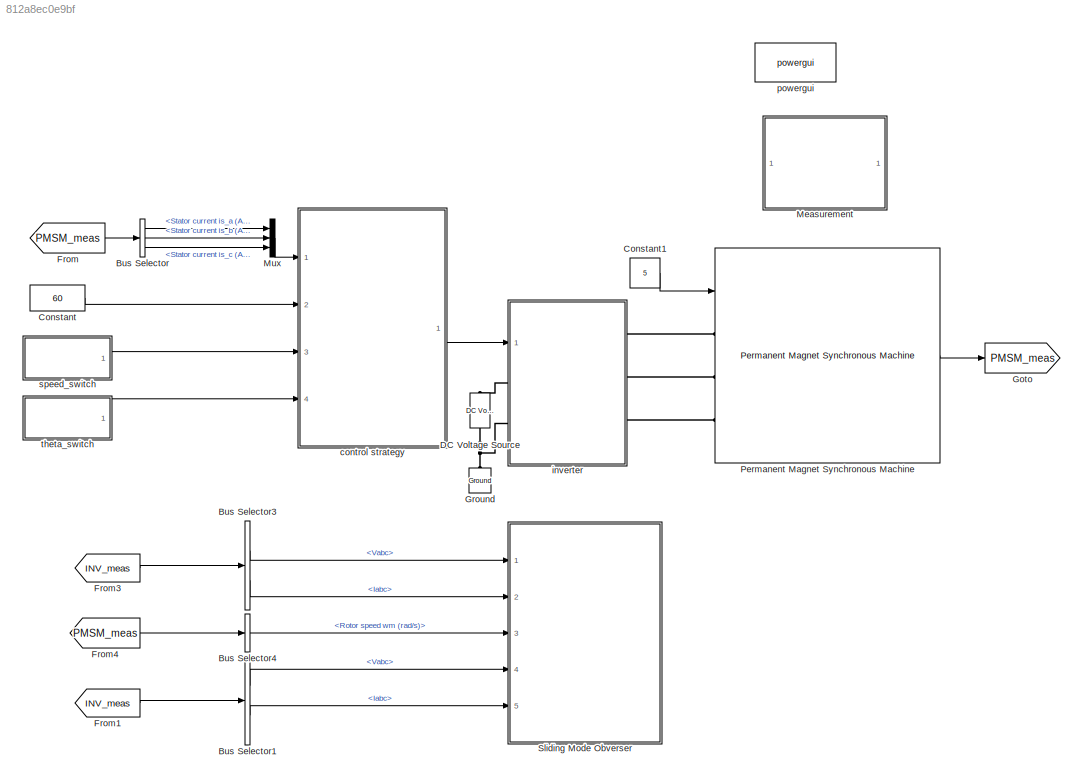
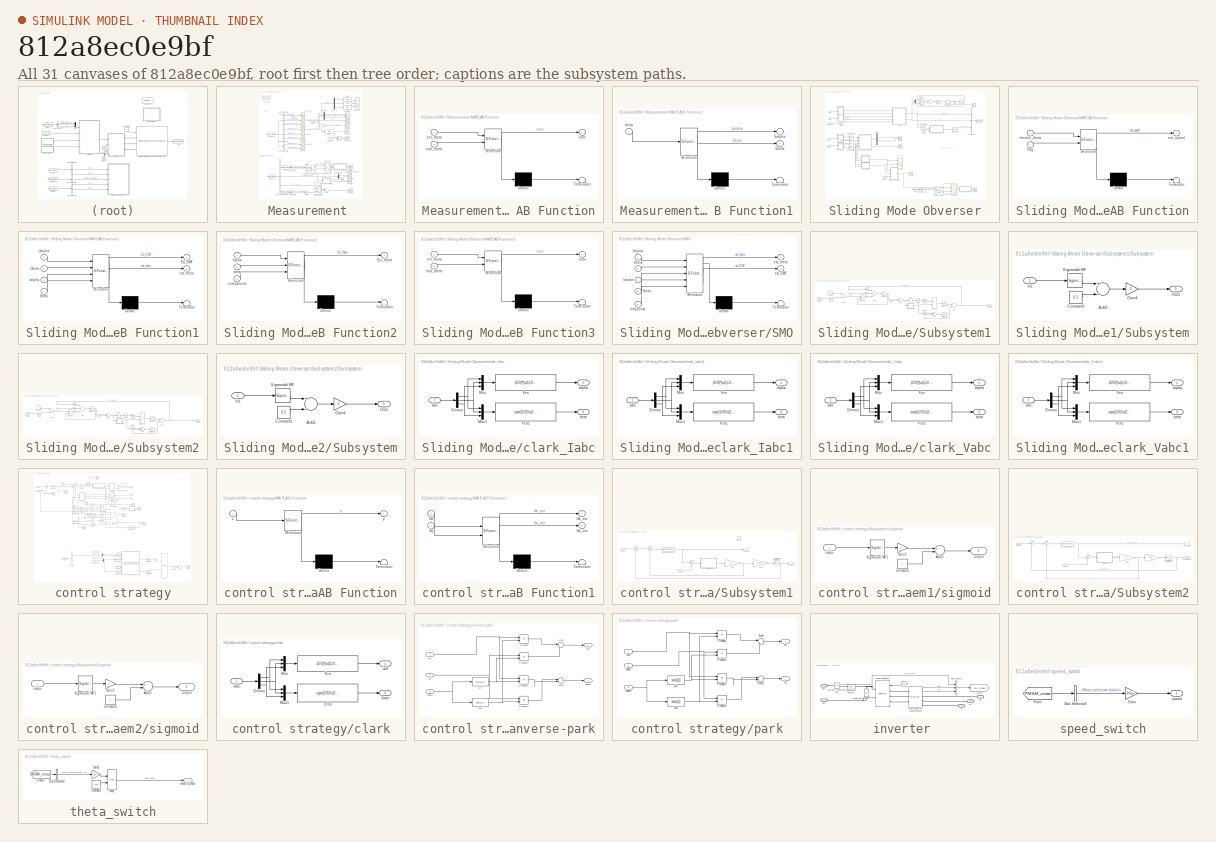
[diagram: thumbnail index - all 31 canvases of the model, root first then tree order]
MODEL slx_812a8ec0e9bf
KIND model
CONFIG AbsTol = auto
CONFIG EnableMultiTasking = off
CONFIG FixedStep = 1/200000
CONFIG MaxStep = auto
CONFIG MinStep = auto
CONFIG RelTol = 1e-3
CONFIG SampleTimeConstraint = Unconstrained
CONFIG Solver = VariableStepAuto
CONFIG SolverName = VariableStepAuto
CONFIG StartTime = 0.0
CONFIG StopTime = 10
WORKSPACE source: mxarray member
WORKSPACE K1 = 5
WORKSPACE K2 = 2000
WORKSPACE Kr = 5
WORKSPACE Ld = 0.01024
WORKSPACE Lq = 0.01024
WORKSPACE P = 10
WORKSPACE Rs = 0.732
WORKSPACE Ts = 5e-05
WORKSPACE Tsim = 5e-05
WORKSPACE Tsim1 = 5e-07
WORKSPACE Udc = 150
WORKSPACE flux = 0.1385
WORKSPACE sigmoid = 0.05
WORKSPACE switch_time = 0.15
BLOCK [BusSelector] Bus Selector
  OutputAsBus = off
  OutputSignals = Stator current is_a (A),Stator current is_b (A),Stator current is_c (A)
  Ports = [1, 3]
BLOCK [BusSelector] Bus Selector1
  OutputAsBus = off
  OutputSignals = Vabc,Iabc
  Ports = [1, 2]
BLOCK [BusSelector] Bus Selector3
  OutputAsBus = off
  OutputSignals = Vabc,Iabc
  Ports = [1, 2]
BLOCK [BusSelector] Bus Selector4
  OutputAsBus = off
  OutputSignals = Rotor speed wm (rad/s)
  Ports = [1, 1]
BLOCK [Constant] Constant
  Value = 60
BLOCK [Constant] Constant1
  Value = 5
BLOCK [Reference] DC Voltage Source  REF=powerlib/Electrical
Sources/DC Voltage Source
  Ports = [0, 0, 0, 0, 0, 1, 1]
  SourceBlock = powerlib/Electrical\nSources/DC Voltage Source
  SourceProductBaseCode = PS
  SourceProductName = Simscape Electrical
  SourceType = DC Voltage Source
BLOCK [From] From
  GotoTag = PMSM_meas
  TagVisibility = global
BLOCK [From] From1
  GotoTag = INV_meas
  TagVisibility = global
BLOCK [From] From3
  GotoTag = INV_meas
  TagVisibility = global
BLOCK [From] From4
  GotoTag = PMSM_meas
  TagVisibility = global
BLOCK [Goto] Goto
  GotoTag = PMSM_meas
  TagVisibility = global
BLOCK [Reference] Ground  REF=powerlib/Elements/Ground
  Ports = [0, 0, 0, 0, 0, 1]
  SourceBlock = powerlib/Elements/Ground
  SourceProductBaseCode = PS
  SourceProductName = Simscape Electrical
  SourceType = Ground
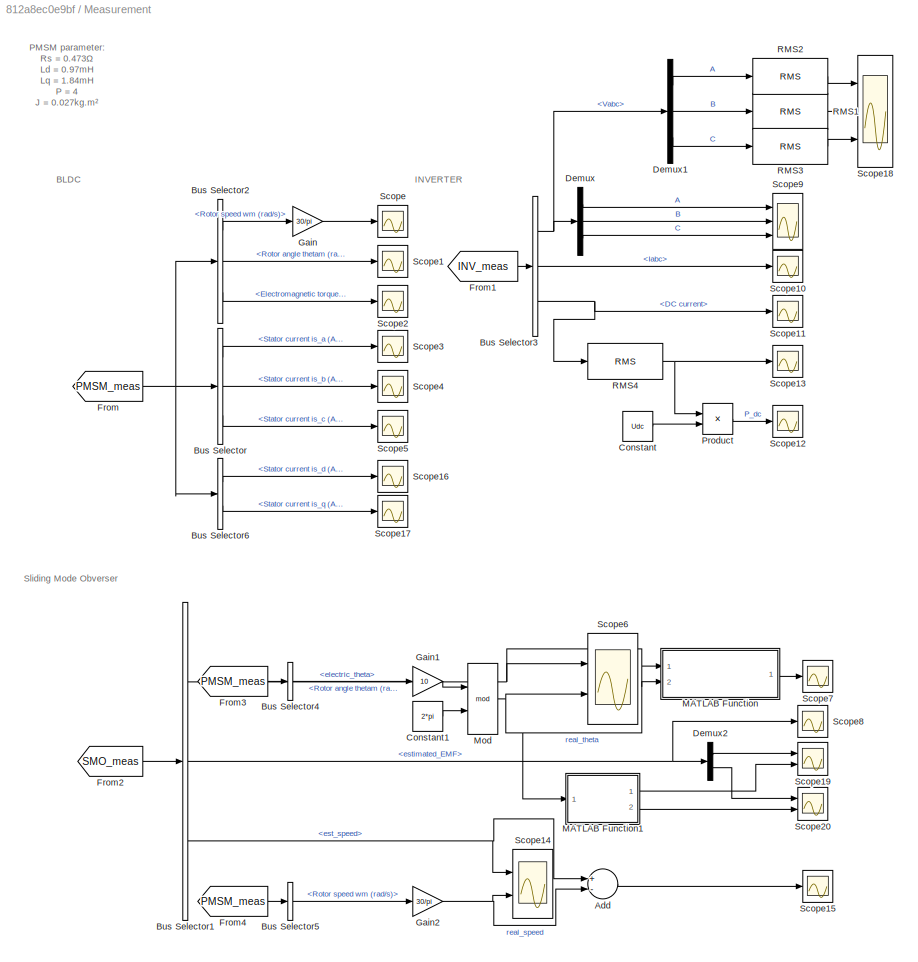
BLOCK [SubSystem] Measurement 
  Ports = []
  RequestExecContextInheritance = off
BLOCK [Sum] Measurement /Add
  InputSameDT = off
  Inputs = +-
  OutDataTypeStr = Inherit: Inherit via internal rule
  Ports = [2, 1]
  SaturateOnIntegerOverflow = off
BLOCK [BusSelector] Measurement /Bus Selector
  OutputAsBus = off
  OutputSignals = Stator current is_a (A),Stator current is_b (A),Stator current is_c (A)
  Ports = [1, 3]
BLOCK [BusSelector] Measurement /Bus Selector1
  OutputAsBus = off
  OutputSignals = electric_theta,estimated_EMF,est_speed
  Ports = [1, 3]
BLOCK [BusSelector] Measurement /Bus Selector2
  OutputAsBus = off
  OutputSignals = Rotor speed wm (rad/s),Rotor angle thetam (rad),Electromagnetic torque Te (N*m)
  Ports = [1, 3]
BLOCK [BusSelector] Measurement /Bus Selector3
  OutputAsBus = off
  OutputSignals = Vabc,Iabc,DC current
  Ports = [1, 3]
BLOCK [BusSelector] Measurement /Bus Selector4
  OutputAsBus = off
  OutputSignals = Rotor angle thetam (rad)
  Ports = [1, 1]
BLOCK [BusSelector] Measurement /Bus Selector5
  OutputAsBus = off
  OutputSignals = Rotor speed wm (rad/s)
  Ports = [1, 1]
BLOCK [BusSelector] Measurement /Bus Selector6
  OutputAsBus = off
  OutputSignals = Stator current is_d (A),Stator current is_q (A)
  Ports = [1, 2]
BLOCK [Constant] Measurement /Constant
  Value = Udc
BLOCK [Constant] Measurement /Constant1
  Value = 2*pi
BLOCK [Demux] Measurement /Demux
  DisplayOption = bar
  Outputs = 3
  Ports = [1, 3]
BLOCK [Demux] Measurement /Demux1
  DisplayOption = bar
  Outputs = 3
  Ports = [1, 3]
BLOCK [Demux] Measurement /Demux2
  DisplayOption = bar
  Outputs = 2
  Ports = [1, 2]
BLOCK [From] Measurement /From
  GotoTag = PMSM_meas
  TagVisibility = global
BLOCK [From] Measurement /From1
  GotoTag = INV_meas
  TagVisibility = global
BLOCK [From] Measurement /From2
  GotoTag = SMO_meas
  TagVisibility = global
BLOCK [From] Measurement /From3
  GotoTag = PMSM_meas
  TagVisibility = global
BLOCK [From] Measurement /From4
  GotoTag = PMSM_meas
  TagVisibility = global
BLOCK [Gain] Measurement /Gain
  Gain = 30/pi
  OutDataTypeStr = Inherit: Inherit via internal rule
  ParamDataTypeStr = Inherit: Inherit via internal rule
  SaturateOnIntegerOverflow = off
BLOCK [Gain] Measurement /Gain1
  Gain = 10
  OutDataTypeStr = Inherit: Inherit via internal rule
  ParamDataTypeStr = Inherit: Inherit via internal rule
  SaturateOnIntegerOverflow = off
BLOCK [Gain] Measurement /Gain2
  Gain = 30/pi
  OutDataTypeStr = Inherit: Inherit via internal rule
  ParamDataTypeStr = Inherit: Inherit via internal rule
  SaturateOnIntegerOverflow = off
BLOCK [SubSystem] Measurement /MATLAB Function
  ErrorFcn = Stateflow.Translate.translate
  PermitHierarchicalResolution = ExplicitOnly
  Ports = [2, 1]
  RequestExecContextInheritance = off
  SFBlockType = MATLAB Function
  TreatAsAtomicUnit = on
BLOCK [Demux] Measurement /MATLAB Function/ Demux 
  Outputs = 1
  Ports = [1, 1]
BLOCK [S-Function] Measurement /MATLAB Function/ SFunction 
  EnableBusSupport = on
  FunctionName = sf_sfun
  PortCounts = [2 2]
  Ports = [2, 2]
  SFcnIsStateOwnerBlock = off
  SFunctionDeploymentMode = off
  Tag = Stateflow S-Function 4
BLOCK [Terminator] Measurement /MATLAB Function/ Terminator 
BLOCK [Outport] Measurement /MATLAB Function/error
  IconDisplay = Port number
  VectorParamsAs1DForOutWhenUnconnected = off
BLOCK [Inport] Measurement /MATLAB Function/est_theta
  IconDisplay = Port number
BLOCK [Inport] Measurement /MATLAB Function/real_theta
  IconDisplay = Port number
  Port = 2
BLOCK [SubSystem] Measurement /MATLAB Function1
  ErrorFcn = Stateflow.Translate.translate
  PermitHierarchicalResolution = ExplicitOnly
  Ports = [1, 2]
  RequestExecContextInheritance = off
  SFBlockType = MATLAB Function
  TreatAsAtomicUnit = on
BLOCK [Demux] Measurement /MATLAB Function1/ Demux 
  Outputs = 1
  Ports = [1, 1]
BLOCK [S-Function] Measurement /MATLAB Function1/ SFunction 
  EnableBusSupport = on
  FunctionName = sf_sfun
  PortCounts = [1 3]
  Ports = [1, 3]
  SFcnIsStateOwnerBlock = off
  SFunctionDeploymentMode = off
  Tag = Stateflow S-Function 9
BLOCK [Terminator] Measurement /MATLAB Function1/ Terminator 
BLOCK [Outport] Measurement /MATLAB Function1/Ealpha
  IconDisplay = Port number
BLOCK [Outport] Measurement /MATLAB Function1/Ebeta
  IconDisplay = Port number
  Port = 2
BLOCK [Inport] Measurement /MATLAB Function1/theta
  IconDisplay = Port number
BLOCK [Math] Measurement /Mod
  Operator = mod
  Ports = [2, 1]
BLOCK [Product] Measurement /Product
  InputSameDT = off
  OutDataTypeStr = Inherit: Inherit via internal rule
  Ports = [2, 1]
  RndMeth = Floor
  SaturateOnIntegerOverflow = off
BLOCK [Reference] Measurement /RMS1  REF=dspstat3/RMS
  Ports = [1, 1]
  SourceBlock = dspstat3/RMS
  SourceProductBaseCode = DS
  SourceProductName = DSP System Toolbox
  SourceType = RMS
  UserDataPersistent = on
BLOCK [Reference] Measurement /RMS2  REF=dspstat3/RMS
  Ports = [1, 1]
  SourceBlock = dspstat3/RMS
  SourceProductBaseCode = DS
  SourceProductName = DSP System Toolbox
  SourceType = RMS
  UserDataPersistent = on
BLOCK [Reference] Measurement /RMS3  REF=dspstat3/RMS
  Ports = [1, 1]
  SourceBlock = dspstat3/RMS
  SourceProductBaseCode = DS
  SourceProductName = DSP System Toolbox
  SourceType = RMS
  UserDataPersistent = on
BLOCK [Reference] Measurement /RMS4  REF=dspstat3/RMS
  Ports = [1, 1]
  SourceBlock = dspstat3/RMS
  SourceProductBaseCode = DS
  SourceProductName = DSP System Toolbox
  SourceType = RMS
  UserDataPersistent = on
BLOCK [Scope] Measurement /Scope
  Floating = off
  NumInputPorts = 1
  Ports = [1]
  ScopeSpecificationString = Simulink.scopes.TimeScopeBlockCfg('CurrentConfiguration', extmgr.ConfigurationSet(extmgr.Configuration('Core','General UI',true,'FigureColor',[1 1 1]),extmgr.Configuration('Core','Source UI',true),extmgr.Configuration('Sources','WiredSimulink',true),extmgr.Configuration('Visuals','Time Domain',true,'SerializedDisplays',{struct('MinYLimReal','56.52489','MaxYLimReal','63.55204','YLabelReal','','MinY...<+1524ch>
BLOCK [Scope] Measurement /Scope1
  Floating = off
  NumInputPorts = 1
  Ports = [1]
  ScopeSpecificationString = Simulink.scopes.TimeScopeBlockCfg('CurrentConfiguration', extmgr.ConfigurationSet(extmgr.Configuration('Core','General UI',true),extmgr.Configuration('Core','Source UI',true),extmgr.Configuration('Sources','WiredSimulink',true,'DataLoggingVariableName','ScopeData1'),extmgr.Configuration('Visuals','Time Domain',true,'SerializedDisplays',{struct('MinYLimReal','-1.5417','MaxYLimReal','13.87074','YLab...<+1387ch>
BLOCK [Scope] Measurement /Scope10
  Floating = off
  NumInputPorts = 1
  Ports = [1]
  ScopeSpecificationString = Simulink.scopes.TimeScopeBlockCfg('CurrentConfiguration', extmgr.ConfigurationSet(extmgr.Configuration('Core','General UI',true),extmgr.Configuration('Core','Source UI',true),extmgr.Configuration('Sources','WiredSimulink',true,'DataLoggingVariableName','ScopeData10'),extmgr.Configuration('Visuals','Time Domain',true,'SerializedDisplays',{struct('MinYLimReal','-58.69105','MaxYLimReal','58.76612','Y...<+1497ch>
BLOCK [Scope] Measurement /Scope11
  Floating = off
  NumInputPorts = 1
  Ports = [1]
  ScopeSpecificationString = Simulink.scopes.TimeScopeBlockCfg('CurrentConfiguration', extmgr.ConfigurationSet(extmgr.Configuration('Core','General UI',true),extmgr.Configuration('Core','Source UI',true),extmgr.Configuration('Sources','WiredSimulink',true,'DataLoggingVariableName','ScopeData1'),extmgr.Configuration('Visuals','Time Domain',true,'SerializedDisplays',{struct('MinYLimReal','-6.90313','MaxYLimReal','25.65509','YLa...<+1476ch>
BLOCK [Scope] Measurement /Scope12
  Floating = off
  NumInputPorts = 1
  Ports = [1]
  ScopeSpecificationString = Simulink.scopes.TimeScopeBlockCfg('CurrentConfiguration', extmgr.ConfigurationSet(extmgr.Configuration('Core','General UI',true),extmgr.Configuration('Core','Source UI',true),extmgr.Configuration('Sources','WiredSimulink',true,'DataLoggingVariableName','ScopeData2'),extmgr.Configuration('Visuals','Time Domain',true,'SerializedDisplays',{struct('MinYLimReal','0','MaxYLimReal','50000','YLabelReal','...<+1446ch>
BLOCK [Scope] Measurement /Scope13
  Floating = off
  NumInputPorts = 1
  Ports = [1]
  ScopeSpecificationString = Simulink.scopes.TimeScopeBlockCfg('CurrentConfiguration', extmgr.ConfigurationSet(extmgr.Configuration('Core','General UI',true),extmgr.Configuration('Core','Source UI',true),extmgr.Configuration('Sources','WiredSimulink',true,'DataLoggingVariableName','ScopeData3'),extmgr.Configuration('Visuals','Time Domain',true,'SerializedDisplays',{struct('MinYLimReal','-30.76281','MaxYLimReal','87.77334','YL...<+1419ch>
BLOCK [Scope] Measurement /Scope14
  Floating = off
  NumInputPorts = 2
  Ports = [2]
  ScopeSpecificationString = Simulink.scopes.TimeScopeBlockCfg('CurrentConfiguration', extmgr.ConfigurationSet(extmgr.Configuration('Core','General UI',true),extmgr.Configuration('Core','Source UI',true),extmgr.Configuration('Sources','WiredSimulink',true,'DataLoggingVariableName','ScopeData5'),extmgr.Configuration('Visuals','Time Domain',true,'SerializedDisplays',{struct('MinYLimReal','-23.71703','MaxYLimReal','201.5258','YL...<+1462ch>
BLOCK [Scope] Measurement /Scope15
  Floating = off
  NumInputPorts = 1
  Ports = [1]
  ScopeSpecificationString = Simulink.scopes.TimeScopeBlockCfg('CurrentConfiguration', extmgr.ConfigurationSet(extmgr.Configuration('Core','General UI',true),extmgr.Configuration('Core','Source UI',true),extmgr.Configuration('Sources','WiredSimulink',true,'DataLoggingVariableName','ScopeData6'),extmgr.Configuration('Visuals','Time Domain',true,'SerializedDisplays',{struct('MinYLimReal','-407.83231','MaxYLimReal','91.68867','Y...<+1446ch>
BLOCK [Scope] Measurement /Scope16
  Floating = off
  NumInputPorts = 1
  Ports = [1]
  ScopeSpecificationString = Simulink.scopes.TimeScopeBlockCfg('CurrentConfiguration', extmgr.ConfigurationSet(extmgr.Configuration('Core','General UI',true),extmgr.Configuration('Core','Source UI',true),extmgr.Configuration('Sources','WiredSimulink',true,'DataLoggingVariableName','ScopeData1'),extmgr.Configuration('Visuals','Time Domain',true,'SerializedDisplays',{struct('MinYLimReal','-88.46839','MaxYLimReal','30.39404','YL...<+1464ch>
BLOCK [Scope] Measurement /Scope17
  Floating = off
  NumInputPorts = 1
  Ports = [1]
  ScopeSpecificationString = Simulink.scopes.TimeScopeBlockCfg('CurrentConfiguration', extmgr.ConfigurationSet(extmgr.Configuration('Core','General UI',true),extmgr.Configuration('Core','Source UI',true),extmgr.Configuration('Sources','WiredSimulink',true,'DataLoggingVariableName','ScopeData2'),extmgr.Configuration('Visuals','Time Domain',true,'SerializedDisplays',{struct('MinYLimReal','-0.87562','MaxYLimReal','7.88058','YLab...<+1457ch>
BLOCK [Scope] Measurement /Scope18
  Floating = off
  NumInputPorts = 3
  Ports = [3]
  ScopeSpecificationString = Simulink.scopes.TimeScopeBlockCfg('CurrentConfiguration', extmgr.ConfigurationSet(extmgr.Configuration('Core','General UI',true),extmgr.Configuration('Core','Source UI',true),extmgr.Configuration('Sources','WiredSimulink',true,'DataLoggingVariableName','ScopeData1'),extmgr.Configuration('Visuals','Time Domain',true,'SerializedDisplays',{struct('MinYLimReal','218.65631','MaxYLimReal','233.83825','Y...<+2796ch>
BLOCK [Scope] Measurement /Scope19
  Floating = off
  NumInputPorts = 2
  Ports = [2]
  ScopeSpecificationString = Simulink.scopes.TimeScopeBlockCfg('CurrentConfiguration', extmgr.ConfigurationSet(extmgr.Configuration('Core','General UI',true),extmgr.Configuration('Core','Source UI',true),extmgr.Configuration('Sources','WiredSimulink',true,'DataLoggingVariableName','ScopeData1'),extmgr.Configuration('Visuals','Time Domain',true,'SerializedDisplays',{struct('MinYLimReal','-49.64844','MaxYLimReal','39.75748','YL...<+1443ch>
BLOCK [Scope] Measurement /Scope2
  Floating = off
  NumInputPorts = 1
  Ports = [1]
  ScopeSpecificationString = Simulink.scopes.TimeScopeBlockCfg('CurrentConfiguration', extmgr.ConfigurationSet(extmgr.Configuration('Core','General UI',true,'FigureColor',[1 1 1]),extmgr.Configuration('Core','Source UI',true),extmgr.Configuration('Sources','WiredSimulink',true,'DataLoggingVariableName','ScopeData2'),extmgr.Configuration('Visuals','Time Domain',true,'SerializedDisplays',{struct('MinYLimReal','-5','MaxYLimReal'...<+1568ch>
BLOCK [Scope] Measurement /Scope20
  Floating = off
  NumInputPorts = 2
  Ports = [2]
  ScopeSpecificationString = Simulink.scopes.TimeScopeBlockCfg('CurrentConfiguration', extmgr.ConfigurationSet(extmgr.Configuration('Core','General UI',true),extmgr.Configuration('Core','Source UI',true),extmgr.Configuration('Sources','WiredSimulink',true,'DataLoggingVariableName','ScopeData2'),extmgr.Configuration('Visuals','Time Domain',true,'SerializedDisplays',{struct('MinYLimReal','-49.64844','MaxYLimReal','39.75748','YL...<+1442ch>
BLOCK [Scope] Measurement /Scope3
  Floating = off
  NumInputPorts = 1
  Ports = [1]
  ScopeSpecificationString = Simulink.scopes.TimeScopeBlockCfg('CurrentConfiguration', extmgr.ConfigurationSet(extmgr.Configuration('Core','General UI',true),extmgr.Configuration('Core','Source UI',true),extmgr.Configuration('Sources','WiredSimulink',true,'DataLoggingVariableName','ScopeData1'),extmgr.Configuration('Visuals','Time Domain',true,'SerializedDisplays',{struct('MinYLimReal','-4.00753','MaxYLimReal','3.35661','YLab...<+1482ch>
BLOCK [Scope] Measurement /Scope4
  Floating = off
  NumInputPorts = 1
  Ports = [1]
  ScopeSpecificationString = Simulink.scopes.TimeScopeBlockCfg('CurrentConfiguration', extmgr.ConfigurationSet(extmgr.Configuration('Core','General UI',true),extmgr.Configuration('Core','Source UI',true),extmgr.Configuration('Sources','WiredSimulink',true,'DataLoggingVariableName','ScopeData4'),extmgr.Configuration('Visuals','Time Domain',true,'SerializedDisplays',{struct('MinYLimReal','-27.26768','MaxYLimReal','26.90025','YL...<+1491ch>
BLOCK [Scope] Measurement /Scope5
  Floating = off
  NumInputPorts = 1
  Ports = [1]
  ScopeSpecificationString = Simulink.scopes.TimeScopeBlockCfg('CurrentConfiguration', extmgr.ConfigurationSet(extmgr.Configuration('Core','General UI',true),extmgr.Configuration('Core','Source UI',true),extmgr.Configuration('Sources','WiredSimulink',true,'DataLoggingVariableName','ScopeData5'),extmgr.Configuration('Visuals','Time Domain',true,'SerializedDisplays',{struct('MinYLimReal','-10.205','MaxYLimReal','7.915','YLabelR...<+1452ch>
BLOCK [Scope] Measurement /Scope6
  Floating = off
  NumInputPorts = 2
  Ports = [2]
  ScopeSpecificationString = Simulink.scopes.TimeScopeBlockCfg('CurrentConfiguration', extmgr.ConfigurationSet(extmgr.Configuration('Core','General UI',true,'FigureColor',[1 1 1]),extmgr.Configuration('Core','Source UI',true),extmgr.Configuration('Sources','WiredSimulink',true,'DataLoggingVariableName','ScopeData1'),extmgr.Configuration('Visuals','Time Domain',true,'SerializedDisplays',{struct('MinYLimReal','-0.7854','MaxYLim...<+1699ch>
BLOCK [Scope] Measurement /Scope7
  Floating = off
  NumInputPorts = 1
  Ports = [1]
  ScopeSpecificationString = Simulink.scopes.TimeScopeBlockCfg('CurrentConfiguration', extmgr.ConfigurationSet(extmgr.Configuration('Core','General UI',true,'FigureColor',[1 1 1]),extmgr.Configuration('Core','Source UI',true),extmgr.Configuration('Sources','WiredSimulink',true,'DataLoggingVariableName','ScopeData3'),extmgr.Configuration('Visuals','Time Domain',true,'SerializedDisplays',{struct('MinYLimReal','-0.2','MaxYLimRea...<+1576ch>
BLOCK [Scope] Measurement /Scope8
  Floating = off
  NumInputPorts = 1
  Ports = [1]
  ScopeSpecificationString = Simulink.scopes.TimeScopeBlockCfg('CurrentConfiguration', extmgr.ConfigurationSet(extmgr.Configuration('Core','General UI',true),extmgr.Configuration('Core','Source UI',true),extmgr.Configuration('Sources','WiredSimulink',true,'DataLoggingVariableName','ScopeData4'),extmgr.Configuration('Visuals','Time Domain',true,'SerializedDisplays',{struct('MinYLimReal','-53.92499','MaxYLimReal','49.91316','YL...<+1503ch>
BLOCK [Scope] Measurement /Scope9
  Floating = off
  NumInputPorts = 3
  Ports = [3]
  ScopeSpecificationString = Simulink.scopes.TimeScopeBlockCfg('CurrentConfiguration', extmgr.ConfigurationSet(extmgr.Configuration('Core','General UI',true),extmgr.Configuration('Core','Source UI',true),extmgr.Configuration('Sources','WiredSimulink',true,'DataLoggingVariableName','ScopeData2'),extmgr.Configuration('Visuals','Time Domain',true,'SerializedDisplays',{struct('MinYLimReal','-40.06929','MaxYLimReal','360.11415','Y...<+2811ch>
BLOCK [Mux] Mux
  DisplayOption = bar
  Inputs = 3
  Ports = [3, 1]
BLOCK [Reference] Permanent Magnet Synchronous Machine  REF=powerlib/Machines/Permanent Magnet
Synchronous Machine
  Ports = [1, 1, 0, 0, 0, 3]
  SourceBlock = powerlib/Machines/Permanent Magnet\nSynchronous Machine
  SourceProductBaseCode = PS
  SourceProductName = Simscape Electrical
  SourceType = Permanent Magnet Synchronous Machine
BLOCK [SubSystem] Sliding Mode Obverser
  Ports = [5]
  RequestExecContextInheritance = off
BLOCK [Sum] Sliding Mode Obverser/Add
  InputSameDT = off
  Inputs = +-
  OutDataTypeStr = Inherit: Inherit via internal rule
  Ports = [2, 1]
  SaturateOnIntegerOverflow = off
BLOCK [BusCreator] Sliding Mode Obverser/Bus Creator
  DisplayOption = bar
  InheritFromInputs = on
  Inputs = 3
  Ports = [3, 1]
BLOCK [BusSelector] Sliding Mode Obverser/Bus Selector4
  OutputAsBus = off
  OutputSignals = Rotor angle thetam (rad)
  Ports = [1, 1]
BLOCK [Constant] Sliding Mode Obverser/Constant1
  Value = 2*pi
BLOCK [Demux] Sliding Mode Obverser/Demux
  DisplayOption = bar
  Outputs = 2
  Ports = [1, 2]
BLOCK [Demux] Sliding Mode Obverser/Demux1
  DisplayOption = bar
  Outputs = 2
  Ports = [1, 2]
BLOCK [DiscreteIntegrator] Sliding Mode Obverser/Discrete-Time Integrator
  ICPrevOutput = DiscIntNeverNeededParam
  ICPrevScaledInput = DiscIntNeverNeededParam
  InitialConditionSetting = Auto
  Ports = [1, 1]
  SampleTime = -1
BLOCK [Reference] Sliding Mode Obverser/First-Order Filter  REF=powerlib_meascontrol/Filters/First-Order
Filter
  Ports = [1, 1]
  SourceBlock = powerlib_meascontrol/Filters/First-Order\nFilter
  SourceProductBaseCode = PS
  SourceProductName = Simscape Electrical
  SourceType = First-Order Filter
BLOCK [From] Sliding Mode Obverser/From3
  GotoTag = PMSM_meas
  TagVisibility = global
BLOCK [Gain] Sliding Mode Obverser/Gain
  Gain = 180/pi
  OutDataTypeStr = Inherit: Inherit via internal rule
  ParamDataTypeStr = Inherit: Inherit via internal rule
  SaturateOnIntegerOverflow = off
BLOCK [Gain] Sliding Mode Obverser/Gain1
  Gain = 10
  OutDataTypeStr = Inherit: Inherit via internal rule
  ParamDataTypeStr = Inherit: Inherit via internal rule
  SaturateOnIntegerOverflow = off
BLOCK [Gain] Sliding Mode Obverser/Gain2
  Gain = 10
  OutDataTypeStr = Inherit: Inherit via internal rule
  ParamDataTypeStr = Inherit: Inherit via internal rule
  SaturateOnIntegerOverflow = off
BLOCK [Goto] Sliding Mode Obverser/Goto
  GotoTag = SMO_meas
  TagVisibility = global
BLOCK [Reference] Sliding Mode Obverser/ID_PI   REF=simulink/Continuous/PID Controller
  Ports = [1, 1]
  SourceBlock = simulink/Continuous/PID Controller
  SourceProductBaseCode = SL
  SourceProductName = Simulink
  SourceType = PID 1dof
BLOCK [Inport] Sliding Mode Obverser/Iabc
  IconDisplay = Port number
  Port = 2
BLOCK [Inport] Sliding Mode Obverser/Iabc1
  IconDisplay = Port number
  Port = 5
BLOCK [SubSystem] Sliding Mode Obverser/MATLAB Function
  ErrorFcn = Stateflow.Translate.translate
  PermitHierarchicalResolution = ExplicitOnly
  Ports = [2, 1]
  RequestExecContextInheritance = off
  SFBlockType = MATLAB Function
  TreatAsAtomicUnit = on
BLOCK [Demux] Sliding Mode Obverser/MATLAB Function/ Demux 
  Outputs = 1
  Ports = [1, 1]
BLOCK [S-Function] Sliding Mode Obverser/MATLAB Function/ SFunction 
  EnableBusSupport = on
  FunctionName = sf_sfun
  PortCounts = [2 2]
  Ports = [2, 2]
  SFcnIsStateOwnerBlock = off
  SFunctionDeploymentMode = off
  Tag = Stateflow S-Function 3
BLOCK [Terminator] Sliding Mode Obverser/MATLAB Function/ Terminator 
BLOCK [Inport] Sliding Mode Obverser/MATLAB Function/electric_theta
  IconDisplay = Port number
BLOCK [Outport] Sliding Mode Obverser/MATLAB Function/est_speed
  IconDisplay = Port number
  VectorParamsAs1DForOutWhenUnconnected = off
BLOCK [Inport] Sliding Mode Obverser/MATLAB Function/flag
  IconDisplay = Port number
  Port = 2
BLOCK [SubSystem] Sliding Mode Obverser/MATLAB Function1
  ErrorFcn = Stateflow.Translate.translate
  PermitHierarchicalResolution = ExplicitOnly
  Ports = [4, 2]
  RequestExecContextInheritance = off
  SFBlockType = MATLAB Function
  TreatAsAtomicUnit = on
BLOCK [Demux] Sliding Mode Obverser/MATLAB Function1/ Demux 
  Outputs = 1
  Ports = [1, 1]
BLOCK [S-Function] Sliding Mode Obverser/MATLAB Function1/ SFunction 
  EnableBusSupport = on
  FunctionName = sf_sfun
  PortCounts = [4 3]
  Ports = [4, 3]
  SFcnIsStateOwnerBlock = off
  SFunctionDeploymentMode = off
  Tag = Stateflow S-Function 2
BLOCK [Terminator] Sliding Mode Obverser/MATLAB Function1/ Terminator 
BLOCK [Outport] Sliding Mode Obverser/MATLAB Function1/Est_EMF
  IconDisplay = Port number
BLOCK [Inport] Sliding Mode Obverser/MATLAB Function1/Ialpha
  IconDisplay = Port number
  Port = 3
BLOCK [Inport] Sliding Mode Obverser/MATLAB Function1/Ibeta
  IconDisplay = Port number
  Port = 4
BLOCK [Inport] Sliding Mode Obverser/MATLAB Function1/Ualpha
  IconDisplay = Port number
BLOCK [Inport] Sliding Mode Obverser/MATLAB Function1/Ubeta
  IconDisplay = Port number
  Port = 2
BLOCK [Outport] Sliding Mode Obverser/MATLAB Function1/est_theta
  IconDisplay = Port number
  Port = 2
BLOCK [SubSystem] Sliding Mode Obverser/MATLAB Function2
  ErrorFcn = Stateflow.Translate.translate
  PermitHierarchicalResolution = ExplicitOnly
  Ports = [3, 1]
  RequestExecContextInheritance = off
  SFBlockType = MATLAB Function
  TreatAsAtomicUnit = on
BLOCK [Demux] Sliding Mode Obverser/MATLAB Function2/ Demux 
  Outputs = 1
  Ports = [1, 1]
BLOCK [S-Function] Sliding Mode Obverser/MATLAB Function2/ SFunction 
  EnableBusSupport = on
  FunctionName = sf_sfun
  PortCounts = [3 2]
  Ports = [3, 2]
  SFcnIsStateOwnerBlock = off
  SFunctionDeploymentMode = off
  Tag = Stateflow S-Function 5
BLOCK [Terminator] Sliding Mode Obverser/MATLAB Function2/ Terminator 
BLOCK [Outport] Sliding Mode Obverser/MATLAB Function2/Est_theta
  IconDisplay = Port number
BLOCK [Inport] Sliding Mode Obverser/MATLAB Function2/alpha
  IconDisplay = Port number
BLOCK [Inport] Sliding Mode Obverser/MATLAB Function2/beta
  IconDisplay = Port number
  Port = 2
BLOCK [Inport] Sliding Mode Obverser/MATLAB Function2/compansite
  IconDisplay = Port number
  Port = 3
BLOCK [SubSystem] Sliding Mode Obverser/MATLAB Function3
  ErrorFcn = Stateflow.Translate.translate
  PermitHierarchicalResolution = ExplicitOnly
  Ports = [2, 1]
  RequestExecContextInheritance = off
  SFBlockType = MATLAB Function
  TreatAsAtomicUnit = on
BLOCK [Demux] Sliding Mode Obverser/MATLAB Function3/ Demux 
  Outputs = 1
  Ports = [1, 1]
BLOCK [S-Function] Sliding Mode Obverser/MATLAB Function3/ SFunction 
  EnableBusSupport = on
  FunctionName = sf_sfun
  PortCounts = [2 2]
  Ports = [2, 2]
  SFcnIsStateOwnerBlock = off
  SFunctionDeploymentMode = off
  Tag = Stateflow S-Function 6
BLOCK [Terminator] Sliding Mode Obverser/MATLAB Function3/ Terminator 
BLOCK [Outport] Sliding Mode Obverser/MATLAB Function3/error
  IconDisplay = Port number
  VectorParamsAs1DForOutWhenUnconnected = off
BLOCK [Inport] Sliding Mode Obverser/MATLAB Function3/est_theta
  IconDisplay = Port number
BLOCK [Inport] Sliding Mode Obverser/MATLAB Function3/real_theta
  IconDisplay = Port number
  Port = 2
BLOCK [Math] Sliding Mode Obverser/Mod
  Operator = mod
  Ports = [2, 1]
BLOCK [Product] Sliding Mode Obverser/Product
  InputSameDT = off
  OutDataTypeStr = Inherit: Inherit via internal rule
  Ports = [2, 1]
  RndMeth = Floor
  SaturateOnIntegerOverflow = off
BLOCK [Product] Sliding Mode Obverser/Product1
  InputSameDT = off
  OutDataTypeStr = Inherit: Inherit via internal rule
  Ports = [2, 1]
  RndMeth = Floor
  SaturateOnIntegerOverflow = off
BLOCK [RateTransition] Sliding Mode Obverser/Rate Transition
  OutPortSampleTime = Ts
BLOCK [RateTransition] Sliding Mode Obverser/Rate Transition5
  OutPortSampleTime = Tsim
BLOCK [RateTransition] Sliding Mode Obverser/Rate Transition6
  OutPortSampleTime = Tsim
BLOCK [RateTransition] Sliding Mode Obverser/Rate Transition7
  OutPortSampleTime = Tsim
BLOCK [RateTransition] Sliding Mode Obverser/Rate Transition8
  OutPortSampleTime = Tsim
BLOCK [Inport] Sliding Mode Obverser/Rotor speed
  IconDisplay = Port number
  Port = 3
BLOCK [SubSystem] Sliding Mode Obverser/SMO
  ErrorFcn = Stateflow.Translate.translate
  PermitHierarchicalResolution = ExplicitOnly
  Ports = [5, 2]
  RequestExecContextInheritance = off
  SFBlockType = MATLAB Function
  TreatAsAtomicUnit = on
BLOCK [Demux] Sliding Mode Obverser/SMO/ Demux 
  Outputs = 1
  Ports = [1, 1]
BLOCK [S-Function] Sliding Mode Obverser/SMO/ SFunction 
  EnableBusSupport = on
  FunctionName = sf_sfun
  PortCounts = [5 3]
  Ports = [5, 3]
  SFcnIsStateOwnerBlock = off
  SFunctionDeploymentMode = off
  Tag = Stateflow S-Function 1
BLOCK [Terminator] Sliding Mode Obverser/SMO/ Terminator 
BLOCK [Inport] Sliding Mode Obverser/SMO/Ialpha
  IconDisplay = Port number
  Port = 3
BLOCK [Inport] Sliding Mode Obverser/SMO/Ibeta
  IconDisplay = Port number
  Port = 4
BLOCK [Inport] Sliding Mode Obverser/SMO/Valpha
  IconDisplay = Port number
BLOCK [Inport] Sliding Mode Obverser/SMO/Vbeta
  IconDisplay = Port number
  Port = 2
BLOCK [Outport] Sliding Mode Obverser/SMO/est_EMF
  IconDisplay = Port number
  Port = 2
  VectorParamsAs1DForOutWhenUnconnected = off
BLOCK [Outport] Sliding Mode Obverser/SMO/est_theta
  IconDisplay = Port number
  VectorParamsAs1DForOutWhenUnconnected = off
BLOCK [Inport] Sliding Mode Obverser/SMO/frequency
  IconDisplay = Port number
  Port = 5
BLOCK [Scope] Sliding Mode Obverser/Scope
  Floating = off
  NumInputPorts = 2
  Ports = [2]
  ScopeSpecificationString = Simulink.scopes.TimeScopeBlockCfg('CurrentConfiguration', extmgr.ConfigurationSet(extmgr.Configuration('Core','General UI',true),extmgr.Configuration('Core','Source UI',true),extmgr.Configuration('Sources','WiredSimulink',true,'DataLoggingVariableName','ScopeData1'),extmgr.Configuration('Visuals','Time Domain',true,'SerializedDisplays',{struct('MinYLimReal','-3.65257','MaxYLimReal','3.23395','YLab...<+1606ch>
BLOCK [Scope] Sliding Mode Obverser/Scope1
  Floating = off
  NumInputPorts = 2
  Ports = [2]
  ScopeSpecificationString = Simulink.scopes.TimeScopeBlockCfg('CurrentConfiguration', extmgr.ConfigurationSet(extmgr.Configuration('Core','General UI',true),extmgr.Configuration('Core','Source UI',true),extmgr.Configuration('Sources','WiredSimulink',true,'DataLoggingVariableName','ScopeData2'),extmgr.Configuration('Visuals','Time Domain',true,'SerializedDisplays',{struct('MinYLimReal','-2.32813','MaxYLimReal','2.00619','YLab...<+1420ch>
BLOCK [Scope] Sliding Mode Obverser/Scope2
  Floating = off
  NumInputPorts = 1
  Ports = [1]
  ScopeSpecificationString = Simulink.scopes.TimeScopeBlockCfg('CurrentConfiguration', extmgr.ConfigurationSet(extmgr.Configuration('Core','General UI',true),extmgr.Configuration('Core','Source UI',true),extmgr.Configuration('Sources','WiredSimulink',true,'DataLoggingVariableName','ScopeData3'),extmgr.Configuration('Visuals','Time Domain',true,'SerializedDisplays',{struct('MinYLimReal','-0.78539','MaxYLimReal','7.06849','YLab...<+1456ch>
BLOCK [Scope] Sliding Mode Obverser/Scope3
  Floating = off
  NumInputPorts = 1
  Ports = [1]
  ScopeSpecificationString = Simulink.scopes.TimeScopeBlockCfg('CurrentConfiguration', extmgr.ConfigurationSet(extmgr.Configuration('Core','General UI',true),extmgr.Configuration('Core','Source UI',true),extmgr.Configuration('Sources','WiredSimulink',true,'DataLoggingVariableName','ScopeData1'),extmgr.Configuration('Visuals','Time Domain',true,'SerializedDisplays',{struct('MinYLimReal','-0.78427','MaxYLimReal','7.06753','YLab...<+1471ch>
BLOCK [Scope] Sliding Mode Obverser/Scope4
  Floating = off
  NumInputPorts = 1
  Ports = [1]
  ScopeSpecificationString = Simulink.scopes.TimeScopeBlockCfg('CurrentConfiguration', extmgr.ConfigurationSet(extmgr.Configuration('Core','General UI',true),extmgr.Configuration('Core','Source UI',true),extmgr.Configuration('Sources','WiredSimulink',true,'DataLoggingVariableName','ScopeData3'),extmgr.Configuration('Visuals','Time Domain',true,'SerializedDisplays',{struct('MinYLimReal','-0.18404','MaxYLimReal','0.02045','YLab...<+1408ch>
BLOCK [Scope] Sliding Mode Obverser/Scope6
  Floating = off
  NumInputPorts = 2
  Ports = [2]
  ScopeSpecificationString = Simulink.scopes.TimeScopeBlockCfg('CurrentConfiguration', extmgr.ConfigurationSet(extmgr.Configuration('Core','General UI',true,'FigureColor',[1 1 1]),extmgr.Configuration('Core','Source UI',true),extmgr.Configuration('Sources','WiredSimulink',true,'DataLoggingVariableName','ScopeData2'),extmgr.Configuration('Visuals','Time Domain',true,'SerializedDisplays',{struct('MinYLimReal','-4.31967','MaxYLi...<+1728ch>
BLOCK [Scope] Sliding Mode Obverser/Scope7
  Floating = off
  NumInputPorts = 1
  Ports = [1]
  ScopeSpecificationString = Simulink.scopes.TimeScopeBlockCfg('CurrentConfiguration', extmgr.ConfigurationSet(extmgr.Configuration('Core','General UI',true,'FigureColor',[1 1 1]),extmgr.Configuration('Core','Source UI',true),extmgr.Configuration('Sources','WiredSimulink',true,'DataLoggingVariableName','ScopeData3'),extmgr.Configuration('Visuals','Time Domain',true,'SerializedDisplays',{struct('MinYLimReal','-0.5','MaxYLimRea...<+1546ch>
BLOCK [Trigonometry] Sliding Mode Obverser/SinCos
  Operator = sincos
  Ports = [1, 2]
BLOCK [Step] Sliding Mode Obverser/Step
  SampleTime = Ts
  Time = switch_time/2
BLOCK [Step] Sliding Mode Obverser/Step1
  After = 0
  SampleTime = 0
  Time = 0
BLOCK [SubSystem] Sliding Mode Obverser/Subsystem1
  Ports = [2, 1]
  RequestExecContextInheritance = off
BLOCK [Abs] Sliding Mode Obverser/Subsystem1/Abs
  SaturateOnIntegerOverflow = off
BLOCK [Sum] Sliding Mode Obverser/Subsystem1/Add
  InputSameDT = off
  Inputs = -++
  OutDataTypeStr = Inherit: Inherit via internal rule
  Ports = [3, 1]
  SaturateOnIntegerOverflow = off
BLOCK [Sum] Sliding Mode Obverser/Subsystem1/Add1
  InputSameDT = off
  Inputs = +-
  OutDataTypeStr = Inherit: Inherit via internal rule
  Ports = [2, 1]
  SaturateOnIntegerOverflow = off
BLOCK [Sum] Sliding Mode Obverser/Subsystem1/Add2
  InputSameDT = off
  OutDataTypeStr = Inherit: Inherit via internal rule
  Ports = [2, 1]
  SaturateOnIntegerOverflow = off
BLOCK [Sum] Sliding Mode Obverser/Subsystem1/Add3
  InputSameDT = off
  OutDataTypeStr = Inherit: Inherit via internal rule
  Ports = [2, 1]
  SaturateOnIntegerOverflow = off
BLOCK [Sum] Sliding Mode Obverser/Subsystem1/Add4
  InputSameDT = off
  Inputs = +-
  OutDataTypeStr = Inherit: Inherit via internal rule
  Ports = [2, 1]
  SaturateOnIntegerOverflow = off
BLOCK [Constant] Sliding Mode Obverser/Subsystem1/Constant
  SampleTime = Tsim
BLOCK [Gain] Sliding Mode Obverser/Subsystem1/Gain
  Gain = 1/Ld*Tsim
  OutDataTypeStr = Inherit: Inherit via internal rule
  ParamDataTypeStr = Inherit: Inherit via internal rule
  SaturateOnIntegerOverflow = off
BLOCK [Gain] Sliding Mode Obverser/Subsystem1/Gain1
  Gain = Tsim/Ld
  OutDataTypeStr = Inherit: Inherit via internal rule
  ParamDataTypeStr = Inherit: Inherit via internal rule
  SaturateOnIntegerOverflow = off
BLOCK [Gain] Sliding Mode Obverser/Subsystem1/Gain2
  Gain = K2*Tsim
  OutDataTypeStr = Inherit: Inherit via internal rule
  ParamDataTypeStr = Inherit: Inherit via internal rule
  SaturateOnIntegerOverflow = off
BLOCK [Gain] Sliding Mode Obverser/Subsystem1/Gain3
  Gain = K1
  OutDataTypeStr = Inherit: Inherit via internal rule
  ParamDataTypeStr = Inherit: Inherit via internal rule
  SaturateOnIntegerOverflow = off
BLOCK [Gain] Sliding Mode Obverser/Subsystem1/Gain5
  Gain = Tsim/Ld
  OutDataTypeStr = Inherit: Inherit via internal rule
  ParamDataTypeStr = Inherit: Inherit via internal rule
  SaturateOnIntegerOverflow = off
BLOCK [Inport] Sliding Mode Obverser/Subsystem1/I
  IconDisplay = Port number
  Port = 2
BLOCK [Outport] Sliding Mode Obverser/Subsystem1/Output
  IconDisplay = Port number
BLOCK [Product] Sliding Mode Obverser/Subsystem1/Product
  InputSameDT = off
  OutDataTypeStr = Inherit: Inherit via internal rule
  Ports = [2, 1]
  RndMeth = Floor
  SaturateOnIntegerOverflow = off
BLOCK [Product] Sliding Mode Obverser/Subsystem1/Product1
  InputSameDT = off
  OutDataTypeStr = Inherit: Inherit via internal rule
  Ports = [2, 1]
  RndMeth = Floor
  SaturateOnIntegerOverflow = off
BLOCK [Sqrt] Sliding Mode Obverser/Subsystem1/Sqrt
BLOCK [Step] Sliding Mode Obverser/Subsystem1/Step
  After = 0.732+1.3
  Before = 0.732
  SampleTime = Tsim
  Time = 3
BLOCK [SubSystem] Sliding Mode Obverser/Subsystem1/Subsystem
  Ports = [1, 1]
  RequestExecContextInheritance = off
BLOCK [Sum] Sliding Mode Obverser/Subsystem1/Subsystem/Add5
  InputSameDT = off
  Inputs = +-
  OutDataTypeStr = Inherit: Inherit via internal rule
  Ports = [2, 1]
  SaturateOnIntegerOverflow = off
BLOCK [Constant] Sliding Mode Obverser/Subsystem1/Subsystem/Constant1
  Value = 0.5
BLOCK [Gain] Sliding Mode Obverser/Subsystem1/Subsystem/Gain4
  Gain = 2
  OutDataTypeStr = Inherit: Inherit via internal rule
  ParamDataTypeStr = Inherit: Inherit via internal rule
  SaturateOnIntegerOverflow = off
BLOCK [Inport] Sliding Mode Obverser/Subsystem1/Subsystem/In1
  IconDisplay = Port number
BLOCK [Outport] Sliding Mode Obverser/Subsystem1/Subsystem/Out1
  IconDisplay = Port number
BLOCK [Reference] Sliding Mode Obverser/Subsystem1/Subsystem/Sigmoidal MF  REF=fuzblock/Membership   (lib defined in mdl_858b3b3e7478)
Functions/Sigmoidal MF
  Ports = [1, 1]
  SourceBlock = fuzblock/Membership \nFunctions/Sigmoidal MF
  SourceProductBaseCode = FL
  SourceProductName = Fuzzy Logic Toolbox
  SourceType = sigmf
BLOCK [Inport] Sliding Mode Obverser/Subsystem1/U
  IconDisplay = Port number
BLOCK [UnitDelay] Sliding Mode Obverser/Subsystem1/Unit Delay1
  HasFrameUpgradeWarning = on
  SampleTime = -1
BLOCK [UnitDelay] Sliding Mode Obverser/Subsystem1/Unit Delay2
  HasFrameUpgradeWarning = on
  SampleTime = -1
BLOCK [UnitDelay] Sliding Mode Obverser/Subsystem1/Unit Delay3
  HasFrameUpgradeWarning = on
  SampleTime = -1
BLOCK [SubSystem] Sliding Mode Obverser/Subsystem2
  Ports = [2, 1]
  RequestExecContextInheritance = off
BLOCK [Abs] Sliding Mode Obverser/Subsystem2/Abs
  SaturateOnIntegerOverflow = off
BLOCK [Sum] Sliding Mode Obverser/Subsystem2/Add
  InputSameDT = off
  Inputs = -++
  OutDataTypeStr = Inherit: Inherit via internal rule
  Ports = [3, 1]
  SaturateOnIntegerOverflow = off
BLOCK [Sum] Sliding Mode Obverser/Subsystem2/Add1
  InputSameDT = off
  Inputs = +-
  OutDataTypeStr = Inherit: Inherit via internal rule
  Ports = [2, 1]
  SaturateOnIntegerOverflow = off
BLOCK [Sum] Sliding Mode Obverser/Subsystem2/Add2
  InputSameDT = off
  OutDataTypeStr = Inherit: Inherit via internal rule
  Ports = [2, 1]
  SaturateOnIntegerOverflow = off
BLOCK [Sum] Sliding Mode Obverser/Subsystem2/Add3
  InputSameDT = off
  OutDataTypeStr = Inherit: Inherit via internal rule
  Ports = [2, 1]
  SaturateOnIntegerOverflow = off
BLOCK [Sum] Sliding Mode Obverser/Subsystem2/Add4
  InputSameDT = off
  Inputs = +-
  OutDataTypeStr = Inherit: Inherit via internal rule
  Ports = [2, 1]
  SaturateOnIntegerOverflow = off
BLOCK [Constant] Sliding Mode Obverser/Subsystem2/Constant
  SampleTime = Tsim
BLOCK [Gain] Sliding Mode Obverser/Subsystem2/Gain
  Gain = 1/Ld*Tsim
  OutDataTypeStr = Inherit: Inherit via internal rule
  ParamDataTypeStr = Inherit: Inherit via internal rule
  SaturateOnIntegerOverflow = off
BLOCK [Gain] Sliding Mode Obverser/Subsystem2/Gain1
  Gain = Tsim/Ld
  OutDataTypeStr = Inherit: Inherit via internal rule
  ParamDataTypeStr = Inherit: Inherit via internal rule
  SaturateOnIntegerOverflow = off
BLOCK [Gain] Sliding Mode Obverser/Subsystem2/Gain2
  Gain = K2*Tsim
  OutDataTypeStr = Inherit: Inherit via internal rule
  ParamDataTypeStr = Inherit: Inherit via internal rule
  SaturateOnIntegerOverflow = off
BLOCK [Gain] Sliding Mode Obverser/Subsystem2/Gain3
  Gain = K1
  OutDataTypeStr = Inherit: Inherit via internal rule
  ParamDataTypeStr = Inherit: Inherit via internal rule
  SaturateOnIntegerOverflow = off
BLOCK [Gain] Sliding Mode Obverser/Subsystem2/Gain5
  Gain = Tsim/Ld
  OutDataTypeStr = Inherit: Inherit via internal rule
  ParamDataTypeStr = Inherit: Inherit via internal rule
  SaturateOnIntegerOverflow = off
BLOCK [Inport] Sliding Mode Obverser/Subsystem2/I
  IconDisplay = Port number
  Port = 2
BLOCK [Outport] Sliding Mode Obverser/Subsystem2/Output
  IconDisplay = Port number
BLOCK [Product] Sliding Mode Obverser/Subsystem2/Product
  InputSameDT = off
  OutDataTypeStr = Inherit: Inherit via internal rule
  Ports = [2, 1]
  RndMeth = Floor
  SaturateOnIntegerOverflow = off
BLOCK [Product] Sliding Mode Obverser/Subsystem2/Product1
  InputSameDT = off
  OutDataTypeStr = Inherit: Inherit via internal rule
  Ports = [2, 1]
  RndMeth = Floor
  SaturateOnIntegerOverflow = off
BLOCK [Sqrt] Sliding Mode Obverser/Subsystem2/Sqrt
BLOCK [Step] Sliding Mode Obverser/Subsystem2/Step
  After = 0.732+1.3
  Before = 0.732
  SampleTime = Tsim
  Time = 3
BLOCK [SubSystem] Sliding Mode Obverser/Subsystem2/Subsystem
  Ports = [1, 1]
  RequestExecContextInheritance = off
BLOCK [Sum] Sliding Mode Obverser/Subsystem2/Subsystem/Add5
  InputSameDT = off
  Inputs = +-
  OutDataTypeStr = Inherit: Inherit via internal rule
  Ports = [2, 1]
  SaturateOnIntegerOverflow = off
BLOCK [Constant] Sliding Mode Obverser/Subsystem2/Subsystem/Constant1
  Value = 0.5
BLOCK [Gain] Sliding Mode Obverser/Subsystem2/Subsystem/Gain4
  Gain = 2
  OutDataTypeStr = Inherit: Inherit via internal rule
  ParamDataTypeStr = Inherit: Inherit via internal rule
  SaturateOnIntegerOverflow = off
BLOCK [Inport] Sliding Mode Obverser/Subsystem2/Subsystem/In1
  IconDisplay = Port number
BLOCK [Outport] Sliding Mode Obverser/Subsystem2/Subsystem/Out1
  IconDisplay = Port number
BLOCK [Reference] Sliding Mode Obverser/Subsystem2/Subsystem/Sigmoidal MF  REF=fuzblock/Membership   (lib defined in mdl_858b3b3e7478)
Functions/Sigmoidal MF
  Ports = [1, 1]
  SourceBlock = fuzblock/Membership \nFunctions/Sigmoidal MF
  SourceProductBaseCode = FL
  SourceProductName = Fuzzy Logic Toolbox
  SourceType = sigmf
BLOCK [Inport] Sliding Mode Obverser/Subsystem2/U
  IconDisplay = Port number
BLOCK [UnitDelay] Sliding Mode Obverser/Subsystem2/Unit Delay1
  HasFrameUpgradeWarning = on
  SampleTime = -1
BLOCK [UnitDelay] Sliding Mode Obverser/Subsystem2/Unit Delay2
  HasFrameUpgradeWarning = on
  SampleTime = -1
BLOCK [UnitDelay] Sliding Mode Obverser/Subsystem2/Unit Delay3
  HasFrameUpgradeWarning = on
  SampleTime = -1
BLOCK [Inport] Sliding Mode Obverser/Vabc
  IconDisplay = Port number
BLOCK [Inport] Sliding Mode Obverser/Vabc1
  IconDisplay = Port number
  Port = 4
BLOCK [SubSystem] Sliding Mode Obverser/clark_Iabc
  Ports = [1, 2]
  RequestExecContextInheritance = off
BLOCK [Demux] Sliding Mode Obverser/clark_Iabc/Demux
  DisplayOption = bar
  Outputs = 3
  Ports = [1, 3]
BLOCK [Fcn] Sliding Mode Obverser/clark_Iabc/Fcn
  Expr = (2/3)*(u(1)-0.5*u(2)-0.5*u(3))
BLOCK [Fcn] Sliding Mode Obverser/clark_Iabc/Fcn1
  Expr = sqrt(1/3)*u(2)-sqrt(1/3)*u(3)
BLOCK [Mux] Sliding Mode Obverser/clark_Iabc/Mux
  DisplayOption = bar
  Inputs = 3
  Ports = [3, 1]
BLOCK [Mux] Sliding Mode Obverser/clark_Iabc/Mux1
  DisplayOption = bar
  Inputs = 3
  Ports = [3, 1]
BLOCK [Inport] Sliding Mode Obverser/clark_Iabc/abc
  IconDisplay = Port number
BLOCK [Outport] Sliding Mode Obverser/clark_Iabc/alpha
  IconDisplay = Port number
  VectorParamsAs1DForOutWhenUnconnected = off
BLOCK [Outport] Sliding Mode Obverser/clark_Iabc/beta
  IconDisplay = Port number
  Port = 2
  VectorParamsAs1DForOutWhenUnconnected = off
BLOCK [SubSystem] Sliding Mode Obverser/clark_Iabc1
  Ports = [1, 2]
  RequestExecContextInheritance = off
BLOCK [Demux] Sliding Mode Obverser/clark_Iabc1/Demux
  DisplayOption = bar
  Outputs = 3
  Ports = [1, 3]
BLOCK [Fcn] Sliding Mode Obverser/clark_Iabc1/Fcn
  Expr = (2/3)*(u(1)-0.5*u(2)-0.5*u(3))
BLOCK [Fcn] Sliding Mode Obverser/clark_Iabc1/Fcn1
  Expr = sqrt(1/3)*u(2)-sqrt(1/3)*u(3)
BLOCK [Mux] Sliding Mode Obverser/clark_Iabc1/Mux
  DisplayOption = bar
  Inputs = 3
  Ports = [3, 1]
BLOCK [Mux] Sliding Mode Obverser/clark_Iabc1/Mux1
  DisplayOption = bar
  Inputs = 3
  Ports = [3, 1]
BLOCK [Inport] Sliding Mode Obverser/clark_Iabc1/abc
  IconDisplay = Port number
BLOCK [Outport] Sliding Mode Obverser/clark_Iabc1/alpha
  IconDisplay = Port number
  VectorParamsAs1DForOutWhenUnconnected = off
BLOCK [Outport] Sliding Mode Obverser/clark_Iabc1/beta
  IconDisplay = Port number
  Port = 2
  VectorParamsAs1DForOutWhenUnconnected = off
BLOCK [SubSystem] Sliding Mode Obverser/clark_Vabc
  Ports = [1, 2]
  RequestExecContextInheritance = off
BLOCK [Demux] Sliding Mode Obverser/clark_Vabc/Demux
  DisplayOption = bar
  Outputs = 3
  Ports = [1, 3]
BLOCK [Fcn] Sliding Mode Obverser/clark_Vabc/Fcn
  Expr = (2/3)*(u(1)-0.5*u(2)-0.5*u(3))
BLOCK [Fcn] Sliding Mode Obverser/clark_Vabc/Fcn1
  Expr = sqrt(1/3)*u(2)-sqrt(1/3)*u(3)
BLOCK [Mux] Sliding Mode Obverser/clark_Vabc/Mux
  DisplayOption = bar
  Inputs = 3
  Ports = [3, 1]
BLOCK [Mux] Sliding Mode Obverser/clark_Vabc/Mux1
  DisplayOption = bar
  Inputs = 3
  Ports = [3, 1]
BLOCK [Inport] Sliding Mode Obverser/clark_Vabc/abc
  IconDisplay = Port number
BLOCK [Outport] Sliding Mode Obverser/clark_Vabc/alpha
  IconDisplay = Port number
  VectorParamsAs1DForOutWhenUnconnected = off
BLOCK [Outport] Sliding Mode Obverser/clark_Vabc/beta
  IconDisplay = Port number
  Port = 2
  VectorParamsAs1DForOutWhenUnconnected = off
BLOCK [SubSystem] Sliding Mode Obverser/clark_Vabc1
  Ports = [1, 2]
  RequestExecContextInheritance = off
BLOCK [Demux] Sliding Mode Obverser/clark_Vabc1/Demux
  DisplayOption = bar
  Outputs = 3
  Ports = [1, 3]
BLOCK [Fcn] Sliding Mode Obverser/clark_Vabc1/Fcn
  Expr = (2/3)*(u(1)-0.5*u(2)-0.5*u(3))
BLOCK [Fcn] Sliding Mode Obverser/clark_Vabc1/Fcn1
  Expr = sqrt(1/3)*u(2)-sqrt(1/3)*u(3)
BLOCK [Mux] Sliding Mode Obverser/clark_Vabc1/Mux
  DisplayOption = bar
  Inputs = 3
  Ports = [3, 1]
BLOCK [Mux] Sliding Mode Obverser/clark_Vabc1/Mux1
  DisplayOption = bar
  Inputs = 3
  Ports = [3, 1]
BLOCK [Inport] Sliding Mode Obverser/clark_Vabc1/abc
  IconDisplay = Port number
BLOCK [Outport] Sliding Mode Obverser/clark_Vabc1/alpha
  IconDisplay = Port number
  VectorParamsAs1DForOutWhenUnconnected = off
BLOCK [Outport] Sliding Mode Obverser/clark_Vabc1/beta
  IconDisplay = Port number
  Port = 2
  VectorParamsAs1DForOutWhenUnconnected = off
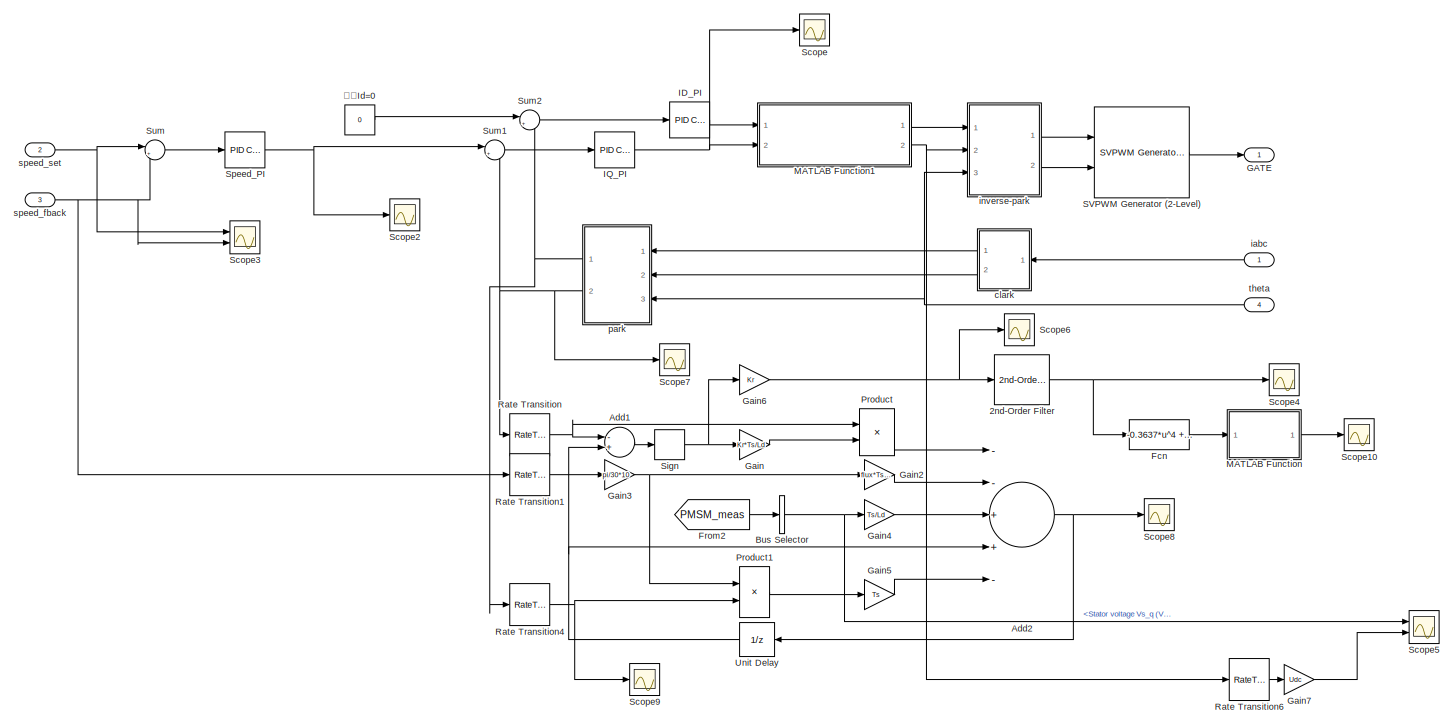
[diagram: control strategy - part 1/3, top center region]
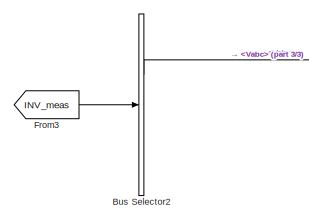
[diagram: control strategy - part 2/3, bottom left region]
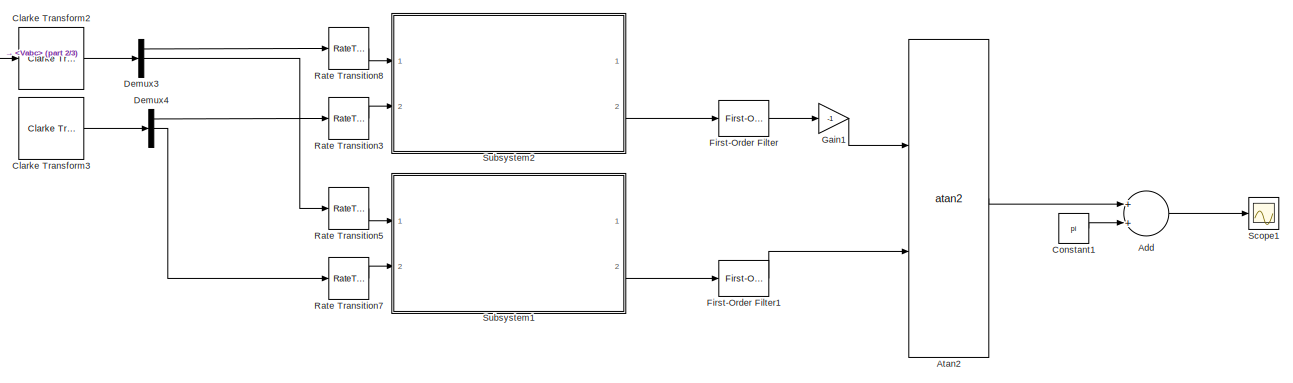
[diagram: control strategy - part 3/3, bottom right region]
BLOCK [SubSystem] control strategy
  Ports = [4, 1]
  RequestExecContextInheritance = off
BLOCK [Reference] control strategy/2nd-Order Filter  REF=powerlib_extras/Control 
Blocks/2nd-Order
Filter
  Ports = [1, 1]
  SourceBlock = powerlib_extras/Control \nBlocks/2nd-Order\nFilter
  SourceProductBaseCode = PS
  SourceProductName = Simscape Electrical
  SourceType = 2nd-Order Filter
BLOCK [Sum] control strategy/Add
  Commented = on
  InputSameDT = off
  OutDataTypeStr = Inherit: Inherit via internal rule
  Ports = [2, 1]
  SaturateOnIntegerOverflow = off
BLOCK [Sum] control strategy/Add1
  InputSameDT = off
  Inputs = -+
  OutDataTypeStr = Inherit: Inherit via internal rule
  Ports = [2, 1]
  SaturateOnIntegerOverflow = off
BLOCK [Sum] control strategy/Add2
  InputSameDT = off
  Inputs = --++-
  OutDataTypeStr = Inherit: Inherit via internal rule
  Ports = [5, 1]
  SaturateOnIntegerOverflow = off
BLOCK [Trigonometry] control strategy/Atan2
  Commented = on
  Operator = atan2
  Ports = [2, 1]
BLOCK [BusSelector] control strategy/Bus Selector
  OutputAsBus = off
  OutputSignals = Stator voltage Vs_q (V)
  Ports = [1, 1]
BLOCK [BusSelector] control strategy/Bus Selector2
  Commented = on
  OutputAsBus = off
  OutputSignals = Vabc,Iabc
  Ports = [1, 2]
BLOCK [Reference] control strategy/Clarke Transform2  REF=eeTransforms/Clarke Transform
  Commented = on
  Ports = [1, 1]
  SourceBlock = eeTransforms/Clarke Transform
  SourceProductBaseCode = PS
  SourceProductName = Simscape Electrical
  SourceType = Clarke Transform
BLOCK [Reference] control strategy/Clarke Transform3  REF=eeTransforms/Clarke Transform
  Commented = on
  Ports = [1, 1]
  SourceBlock = eeTransforms/Clarke Transform
  SourceProductBaseCode = PS
  SourceProductName = Simscape Electrical
  SourceType = Clarke Transform
BLOCK [Constant] control strategy/Constant1
  Commented = on
  Value = pi
BLOCK [Demux] control strategy/Demux3
  Commented = on
  DisplayOption = bar
  Outputs = 3
  Ports = [1, 3]
BLOCK [Demux] control strategy/Demux4
  Commented = on
  DisplayOption = bar
  Outputs = 3
  Ports = [1, 3]
BLOCK [Fcn] control strategy/Fcn
  Expr = -0.3637*u^4 + 8.1652*u^3 - 68.0962*u^2 +250.2510*u^1-340.6828
BLOCK [Reference] control strategy/First-Order Filter  REF=powerlib_meascontrol/Filters/First-Order
Filter
  Commented = on
  Ports = [1, 1]
  SourceBlock = powerlib_meascontrol/Filters/First-Order\nFilter
  SourceProductBaseCode = PS
  SourceProductName = Simscape Electrical
  SourceType = First-Order Filter
BLOCK [Reference] control strategy/First-Order Filter1  REF=powerlib_meascontrol/Filters/First-Order
Filter
  Commented = on
  Ports = [1, 1]
  SourceBlock = powerlib_meascontrol/Filters/First-Order\nFilter
  SourceProductBaseCode = PS
  SourceProductName = Simscape Electrical
  SourceType = First-Order Filter
BLOCK [From] control strategy/From2
  GotoTag = PMSM_meas
  TagVisibility = global
BLOCK [From] control strategy/From3
  Commented = on
  GotoTag = INV_meas
  TagVisibility = global
BLOCK [Outport] control strategy/GATE
  IconDisplay = Port number
  VectorParamsAs1DForOutWhenUnconnected = off
BLOCK [Gain] control strategy/Gain
  Gain = Kr*Ts/Ld
  OutDataTypeStr = Inherit: Inherit via internal rule
  ParamDataTypeStr = Inherit: Inherit via internal rule
  SaturateOnIntegerOverflow = off
BLOCK [Gain] control strategy/Gain1
  Commented = on
  Gain = -1
  OutDataTypeStr = Inherit: Inherit via internal rule
  ParamDataTypeStr = Inherit: Inherit via internal rule
  SaturateOnIntegerOverflow = off
BLOCK [Gain] control strategy/Gain2
  Gain = flux*Ts/Ld
  OutDataTypeStr = Inherit: Inherit via internal rule
  ParamDataTypeStr = Inherit: Inherit via internal rule
  SaturateOnIntegerOverflow = off
BLOCK [Gain] control strategy/Gain3
  Gain = pi/30*10
  OutDataTypeStr = Inherit: Inherit via internal rule
  ParamDataTypeStr = Inherit: Inherit via internal rule
  SaturateOnIntegerOverflow = off
BLOCK [Gain] control strategy/Gain4
  Gain = Ts/Ld
  OutDataTypeStr = Inherit: Inherit via internal rule
  ParamDataTypeStr = Inherit: Inherit via internal rule
  SaturateOnIntegerOverflow = off
BLOCK [Gain] control strategy/Gain5
  Gain = Ts
  OutDataTypeStr = Inherit: Inherit via internal rule
  ParamDataTypeStr = Inherit: Inherit via internal rule
  SaturateOnIntegerOverflow = off
BLOCK [Gain] control strategy/Gain6
  Gain = Kr
  OutDataTypeStr = Inherit: Inherit via internal rule
  ParamDataTypeStr = Inherit: Inherit via internal rule
  SaturateOnIntegerOverflow = off
BLOCK [Gain] control strategy/Gain7
  Gain = Udc
  OutDataTypeStr = Inherit: Inherit via internal rule
  ParamDataTypeStr = Inherit: Inherit via internal rule
  SaturateOnIntegerOverflow = off
BLOCK [Reference] control strategy/ID_PI   REF=simulink/Continuous/PID Controller
  Ports = [1, 1]
  SourceBlock = simulink/Continuous/PID Controller
  SourceProductBaseCode = SL
  SourceProductName = Simulink
  SourceType = PID 1dof
BLOCK [Reference] control strategy/IQ_PI   REF=simulink/Continuous/PID Controller
  Ports = [1, 1]
  SourceBlock = simulink/Continuous/PID Controller
  SourceProductBaseCode = SL
  SourceProductName = Simulink
  SourceType = PID 1dof
BLOCK [SubSystem] control strategy/MATLAB Function
  ErrorFcn = Stateflow.Translate.translate
  PermitHierarchicalResolution = ExplicitOnly
  Ports = [1, 1]
  RequestExecContextInheritance = off
  SFBlockType = MATLAB Function
  TreatAsAtomicUnit = on
BLOCK [Demux] control strategy/MATLAB Function/ Demux 
  Outputs = 1
  Ports = [1, 1]
BLOCK [S-Function] control strategy/MATLAB Function/ SFunction 
  EnableBusSupport = on
  FunctionName = sf_sfun
  PortCounts = [1 2]
  Ports = [1, 2]
  SFcnIsStateOwnerBlock = off
  SFunctionDeploymentMode = off
  Tag = Stateflow S-Function 8
BLOCK [Terminator] control strategy/MATLAB Function/ Terminator 
BLOCK [Inport] control strategy/MATLAB Function/u
  IconDisplay = Port number
BLOCK [Outport] control strategy/MATLAB Function/y
  IconDisplay = Port number
BLOCK [SubSystem] control strategy/MATLAB Function1
  ErrorFcn = Stateflow.Translate.translate
  PermitHierarchicalResolution = ExplicitOnly
  Ports = [2, 2]
  RequestExecContextInheritance = off
  SFBlockType = MATLAB Function
  TreatAsAtomicUnit = on
BLOCK [Demux] control strategy/MATLAB Function1/ Demux 
  Outputs = 1
  Ports = [1, 1]
BLOCK [S-Function] control strategy/MATLAB Function1/ SFunction 
  EnableBusSupport = on
  FunctionName = sf_sfun
  PortCounts = [2 3]
  Ports = [2, 3]
  SFcnIsStateOwnerBlock = off
  SFunctionDeploymentMode = off
  Tag = Stateflow S-Function 7
BLOCK [Terminator] control strategy/MATLAB Function1/ Terminator 
BLOCK [Inport] control strategy/MATLAB Function1/Ud
  IconDisplay = Port number
BLOCK [Outport] control strategy/MATLAB Function1/Ud_out
  IconDisplay = Port number
BLOCK [Inport] control strategy/MATLAB Function1/Uq
  IconDisplay = Port number
  Port = 2
BLOCK [Outport] control strategy/MATLAB Function1/Uq_out
  IconDisplay = Port number
  Port = 2
BLOCK [Product] control strategy/Product
  InputSameDT = off
  OutDataTypeStr = Inherit: Inherit via internal rule
  Ports = [2, 1]
  RndMeth = Floor
  SaturateOnIntegerOverflow = off
BLOCK [Product] control strategy/Product1
  InputSameDT = off
  OutDataTypeStr = Inherit: Inherit via internal rule
  Ports = [2, 1]
  RndMeth = Floor
  SaturateOnIntegerOverflow = off
BLOCK [RateTransition] control strategy/Rate Transition
  OutPortSampleTime = Ts
BLOCK [RateTransition] control strategy/Rate Transition1
  OutPortSampleTime = Ts
BLOCK [RateTransition] control strategy/Rate Transition3
  Commented = on
  OutPortSampleTime = Ts
BLOCK [RateTransition] control strategy/Rate Transition4
  OutPortSampleTime = Ts
BLOCK [RateTransition] control strategy/Rate Transition5
  Commented = on
  OutPortSampleTime = Ts
BLOCK [RateTransition] control strategy/Rate Transition6
  OutPortSampleTime = Ts
BLOCK [RateTransition] control strategy/Rate Transition7
  Commented = on
  OutPortSampleTime = Ts
BLOCK [RateTransition] control strategy/Rate Transition8
  Commented = on
  InitialCondition = Ts/10
  OutPortSampleTime = Ts
BLOCK [Reference] control strategy/SVPWM Generator (2-Level)  REF=powerlib_meascontrol/Pulse & Signal
Generators/SVPWM Generator
(2-Level)
  Ports = [2, 1]
  SourceBlock = powerlib_meascontrol/Pulse & Signal\nGenerators/SVPWM Generator\n(2-Level)
  SourceProductBaseCode = PS
  SourceProductName = Simscape Electrical
  SourceType = SVPWM Generator (2-Level)
BLOCK [Scope] control strategy/Scope
  Floating = off
  NumInputPorts = 1
  Ports = [1]
  ScopeSpecificationString = Simulink.scopes.TimeScopeBlockCfg('CurrentConfiguration', extmgr.ConfigurationSet(extmgr.Configuration('Core','General UI',true),extmgr.Configuration('Core','Source UI',true),extmgr.Configuration('Sources','WiredSimulink',true,'DataLoggingVariableName','ScopeData4'),extmgr.Configuration('Visuals','Time Domain',true,'SerializedDisplays',{struct('MinYLimReal','0.02723','MaxYLimReal','0.14991','YLabe...<+1407ch>
BLOCK [Scope] control strategy/Scope1
  Commented = on
  Floating = off
  NumInputPorts = 1
  Ports = [1]
  ScopeSpecificationString = Simulink.scopes.TimeScopeBlockCfg('CurrentConfiguration', extmgr.ConfigurationSet(extmgr.Configuration('Core','General UI',true),extmgr.Configuration('Core','Source UI',true),extmgr.Configuration('Sources','WiredSimulink',true,'DataLoggingVariableName','ScopeData1'),extmgr.Configuration('Visuals','Time Domain',true,'SerializedDisplays',{struct('MinYLimReal','-10.00000','MaxYLimReal','10.00000','YL...<+1444ch>
BLOCK [Scope] control strategy/Scope10
  Floating = off
  NumInputPorts = 1
  Ports = [1]
  ScopeSpecificationString = Simulink.scopes.TimeScopeBlockCfg('CurrentConfiguration', extmgr.ConfigurationSet(extmgr.Configuration('Core','General UI',true,'FigureColor',[1 1 1]),extmgr.Configuration('Core','Source UI',true),extmgr.Configuration('Sources','WiredSimulink',true,'DataLoggingVariableName','ScopeData13'),extmgr.Configuration('Visuals','Time Domain',true,'SerializedDisplays',{struct('MinYLimReal','0.76238','MaxYLi...<+1560ch>
BLOCK [Scope] control strategy/Scope2
  Floating = off
  NumInputPorts = 1
  Ports = [1]
  ScopeSpecificationString = Simulink.scopes.TimeScopeBlockCfg('CurrentConfiguration', extmgr.ConfigurationSet(extmgr.Configuration('Core','General UI',true),extmgr.Configuration('Core','Source UI',true),extmgr.Configuration('Sources','WiredSimulink',true,'DataLoggingVariableName','ScopeData5'),extmgr.Configuration('Visuals','Time Domain',true,'SerializedDisplays',{struct('MinYLimReal','2.06656','MaxYLimReal','2.65169','YLabe...<+1409ch>
BLOCK [Scope] control strategy/Scope3
  Floating = off
  NumInputPorts = 2
  Ports = [2]
  ScopeSpecificationString = Simulink.scopes.TimeScopeBlockCfg('CurrentConfiguration', extmgr.ConfigurationSet(extmgr.Configuration('Core','General UI',true),extmgr.Configuration('Core','Source UI',true),extmgr.Configuration('Sources','WiredSimulink',true,'DataLoggingVariableName','ScopeData6'),extmgr.Configuration('Visuals','Time Domain',true,'SerializedDisplays',{struct('MinYLimReal','51.85536','MaxYLimReal','65.23856','YLa...<+1432ch>
BLOCK [Scope] control strategy/Scope4
  Floating = off
  NumInputPorts = 1
  Ports = [1]
  ScopeSpecificationString = Simulink.scopes.TimeScopeBlockCfg('CurrentConfiguration', extmgr.ConfigurationSet(extmgr.Configuration('Core','General UI',true),extmgr.Configuration('Core','Source UI',true),extmgr.Configuration('Sources','WiredSimulink',true,'DataLoggingVariableName','ScopeData7'),extmgr.Configuration('Visuals','Time Domain',true,'SerializedDisplays',{struct('MinYLimReal','-4.71889','MaxYLimReal','0.52432','YLab...<+1449ch>
BLOCK [Scope] control strategy/Scope5
  Floating = off
  NumInputPorts = 2
  Ports = [2]
  ScopeSpecificationString = Simulink.scopes.TimeScopeBlockCfg('CurrentConfiguration', extmgr.ConfigurationSet(extmgr.Configuration('Core','General UI',true),extmgr.Configuration('Core','Source UI',true),extmgr.Configuration('Sources','WiredSimulink',true,'DataLoggingVariableName','ScopeData1'),extmgr.Configuration('Visuals','Time Domain',true,'SerializedDisplays',{struct('MinYLimReal','-5.76411','MaxYLimReal','51.84046','YLa...<+1412ch>
BLOCK [Scope] control strategy/Scope6
  Floating = off
  NumInputPorts = 1
  Ports = [1]
  ScopeSpecificationString = Simulink.scopes.TimeScopeBlockCfg('CurrentConfiguration', extmgr.ConfigurationSet(extmgr.Configuration('Core','General UI',true),extmgr.Configuration('Core','Source UI',true),extmgr.Configuration('Sources','WiredSimulink',true,'DataLoggingVariableName','ScopeData9'),extmgr.Configuration('Visuals','Time Domain',true,'SerializedDisplays',{struct('MinYLimReal','-12.5','MaxYLimReal','12.5','YLabelReal...<+1417ch>
BLOCK [Scope] control strategy/Scope7
  Floating = off
  NumInputPorts = 1
  Ports = [1]
  ScopeSpecificationString = Simulink.scopes.TimeScopeBlockCfg('CurrentConfiguration', extmgr.ConfigurationSet(extmgr.Configuration('Core','General UI',true),extmgr.Configuration('Core','Source UI',true),extmgr.Configuration('Sources','WiredSimulink',true,'DataLoggingVariableName','ScopeData10'),extmgr.Configuration('Visuals','Time Domain',true,'SerializedDisplays',{struct('MinYLimReal','-0.45686','MaxYLimReal','4.11175','YLa...<+1412ch>
BLOCK [Scope] control strategy/Scope8
  Floating = off
  NumInputPorts = 1
  Ports = [1]
  ScopeSpecificationString = Simulink.scopes.TimeScopeBlockCfg('CurrentConfiguration', extmgr.ConfigurationSet(extmgr.Configuration('Core','General UI',true),extmgr.Configuration('Core','Source UI',true),extmgr.Configuration('Sources','WiredSimulink',true,'DataLoggingVariableName','ScopeData11'),extmgr.Configuration('Visuals','Time Domain',true,'SerializedDisplays',{struct('MinYLimReal','-0.47889','MaxYLimReal','4.30998','YLa...<+1408ch>
BLOCK [Scope] control strategy/Scope9
  Floating = off
  NumInputPorts = 1
  Ports = [1]
  ScopeSpecificationString = Simulink.scopes.TimeScopeBlockCfg('CurrentConfiguration', extmgr.ConfigurationSet(extmgr.Configuration('Core','General UI',true),extmgr.Configuration('Core','Source UI',true),extmgr.Configuration('Sources','WiredSimulink',true,'DataLoggingVariableName','ScopeData12'),extmgr.Configuration('Visuals','Time Domain',true,'SerializedDisplays',{struct('MinYLimReal','-0.10881','MaxYLimReal','0.18387','YLa...<+1395ch>
BLOCK [Signum] control strategy/Sign
BLOCK [Reference] control strategy/Speed_PI  REF=simulink/Continuous/PID Controller
  Ports = [1, 1]
  SourceBlock = simulink/Continuous/PID Controller
  SourceProductBaseCode = SL
  SourceProductName = Simulink
  SourceType = PID 1dof
BLOCK [SubSystem] control strategy/Subsystem1
  Commented = on
  Ports = [2, 2]
  RequestExecContextInheritance = off
BLOCK [DiscreteTransferFcn] control strategy/Subsystem1/Discrete Transfer Fcn
  Denominator = [1 -0.9419]
  InputPortMap = u0
  Numerator = [0.1229]
  Ports = [1, 1]
  SampleTime = Ts
BLOCK [DiscreteIntegrator] control strategy/Subsystem1/Discrete-Time Integrator
  ICPrevOutput = DiscIntNeverNeededParam
  ICPrevScaledInput = DiscIntNeverNeededParam
  LowerSaturationLimit = LowerLimit
  Ports = [1, 1]
  SampleTime = Ts
  UpperSaturationLimit = UpperLimit
BLOCK [Gain] control strategy/Subsystem1/Gain
  Gain = 10
  OutDataTypeStr = Inherit: Inherit via internal rule
  ParamDataTypeStr = Inherit: Inherit via internal rule
  SaturateOnIntegerOverflow = off
BLOCK [Gain] control strategy/Subsystem1/Gain1
  Gain = 4000
  OutDataTypeStr = Inherit: Inherit via internal rule
  ParamDataTypeStr = Inherit: Inherit via internal rule
  SaturateOnIntegerOverflow = off
BLOCK [Signum] control strategy/Subsystem1/Sign1
BLOCK [Sum] control strategy/Subsystem1/Sum
  IconShape = round
  InputSameDT = off
  Inputs = |+-
  OutDataTypeStr = Inherit: Inherit via internal rule
  Ports = [2, 1]
  SaturateOnIntegerOverflow = off
BLOCK [Sum] control strategy/Subsystem1/Sum1
  IconShape = round
  InputSameDT = off
  Inputs = |+-
  OutDataTypeStr = Inherit: Inherit via internal rule
  Ports = [2, 1]
  SaturateOnIntegerOverflow = off
BLOCK [Sum] control strategy/Subsystem1/Sum2
  IconShape = round
  InputSameDT = off
  Inputs = |+-
  OutDataTypeStr = Inherit: Inherit via internal rule
  Ports = [2, 1]
  SaturateOnIntegerOverflow = off
BLOCK [Outport] control strategy/Subsystem1/e_betaest
  IconDisplay = Port number
  Port = 2
  VectorParamsAs1DForOutWhenUnconnected = off
BLOCK [Inport] control strategy/Subsystem1/i_beta
  IconDisplay = Port number
  Port = 2
BLOCK [Outport] control strategy/Subsystem1/i_betaest
  IconDisplay = Port number
  VectorParamsAs1DForOutWhenUnconnected = off
BLOCK [SubSystem] control strategy/Subsystem1/sigmoid
  Ports = [1, 1]
  RequestExecContextInheritance = off
BLOCK [Sum] control strategy/Subsystem1/sigmoid/Add3
  InputSameDT = off
  Inputs = +-
  OutDataTypeStr = Inherit: Inherit via internal rule
  Ports = [2, 1]
  SaturateOnIntegerOverflow = off
BLOCK [Constant] control strategy/Subsystem1/sigmoid/Constant
BLOCK [Gain] control strategy/Subsystem1/sigmoid/Gain1
  Gain = 2
  OutDataTypeStr = Inherit: Inherit via internal rule
  ParamDataTypeStr = Inherit: Inherit via internal rule
  SaturateOnIntegerOverflow = off
BLOCK [Reference] control strategy/Subsystem1/sigmoid/Sigmoidal MF1  REF=fuzblock/Membership   (lib defined in mdl_858b3b3e7478)
Functions/Sigmoidal MF
  Ports = [1, 1]
  SourceBlock = fuzblock/Membership \nFunctions/Sigmoidal MF
  SourceProductBaseCode = FL
  SourceProductName = Fuzzy Logic Toolbox
  SourceType = sigmf
BLOCK [Inport] control strategy/Subsystem1/sigmoid/input
  IconDisplay = Port number
BLOCK [Outport] control strategy/Subsystem1/sigmoid/output
  IconDisplay = Port number
  VectorParamsAs1DForOutWhenUnconnected = off
BLOCK [Inport] control strategy/Subsystem1/ubeta
  IconDisplay = Port number
BLOCK [SubSystem] control strategy/Subsystem2
  Commented = on
  Ports = [2, 2]
  RequestExecContextInheritance = off
BLOCK [Gain] control strategy/Subsystem2/C
  Gain = 4000
  OutDataTypeStr = Inherit: Inherit via internal rule
  ParamDataTypeStr = Inherit: Inherit via internal rule
  SaturateOnIntegerOverflow = off
BLOCK [DiscreteTransferFcn] control strategy/Subsystem2/Discrete Transfer Fcn
  Denominator = [1 -0.9419]
  InputPortMap = u0
  Numerator = [0.1229]
  Ports = [1, 1]
  SampleTime = Ts
BLOCK [DiscreteIntegrator] control strategy/Subsystem2/Discrete-Time Integrator
  ICPrevOutput = DiscIntNeverNeededParam
  ICPrevScaledInput = DiscIntNeverNeededParam
  LowerSaturationLimit = LowerLimit
  Ports = [1, 1]
  SampleTime = Ts
  UpperSaturationLimit = UpperLimit
BLOCK [Gain] control strategy/Subsystem2/Gain2
  Gain = 10
  OutDataTypeStr = Inherit: Inherit via internal rule
  ParamDataTypeStr = Inherit: Inherit via internal rule
  SaturateOnIntegerOverflow = off
BLOCK [Sum] control strategy/Subsystem2/Sum
  IconShape = round
  InputSameDT = off
  Inputs = |+-
  OutDataTypeStr = Inherit: Inherit via internal rule
  Ports = [2, 1]
  SaturateOnIntegerOverflow = off
BLOCK [Sum] control strategy/Subsystem2/Sum1
  IconShape = round
  InputSameDT = off
  Inputs = |+-
  OutDataTypeStr = Inherit: Inherit via internal rule
  Ports = [2, 1]
  SaturateOnIntegerOverflow = off
BLOCK [Sum] control strategy/Subsystem2/Sum2
  IconShape = round
  InputSameDT = off
  Inputs = |+-
  OutDataTypeStr = Inherit: Inherit via internal rule
  Ports = [2, 1]
  SaturateOnIntegerOverflow = off
BLOCK [Outport] control strategy/Subsystem2/e_alphaest
  IconDisplay = Port number
  Port = 2
  VectorParamsAs1DForOutWhenUnconnected = off
BLOCK [Inport] control strategy/Subsystem2/i_alpha
  IconDisplay = Port number
  Port = 2
BLOCK [Outport] control strategy/Subsystem2/i_alphaest
  IconDisplay = Port number
  VectorParamsAs1DForOutWhenUnconnected = off
BLOCK [SubSystem] control strategy/Subsystem2/sigmoid
  Ports = [1, 1]
  RequestExecContextInheritance = off
BLOCK [Sum] control strategy/Subsystem2/sigmoid/Add3
  InputSameDT = off
  Inputs = +-
  OutDataTypeStr = Inherit: Inherit via internal rule
  Ports = [2, 1]
  SaturateOnIntegerOverflow = off
BLOCK [Constant] control strategy/Subsystem2/sigmoid/Constant
BLOCK [Gain] control strategy/Subsystem2/sigmoid/Gain1
  Gain = 2
  OutDataTypeStr = Inherit: Inherit via internal rule
  ParamDataTypeStr = Inherit: Inherit via internal rule
  SaturateOnIntegerOverflow = off
BLOCK [Reference] control strategy/Subsystem2/sigmoid/Sigmoidal MF1  REF=fuzblock/Membership   (lib defined in mdl_858b3b3e7478)
Functions/Sigmoidal MF
  Ports = [1, 1]
  SourceBlock = fuzblock/Membership \nFunctions/Sigmoidal MF
  SourceProductBaseCode = FL
  SourceProductName = Fuzzy Logic Toolbox
  SourceType = sigmf
BLOCK [Inport] control strategy/Subsystem2/sigmoid/input
  IconDisplay = Port number
BLOCK [Outport] control strategy/Subsystem2/sigmoid/output
  IconDisplay = Port number
  VectorParamsAs1DForOutWhenUnconnected = off
BLOCK [Inport] control strategy/Subsystem2/ualpha
  IconDisplay = Port number
BLOCK [Sum] control strategy/Sum
  IconShape = round
  InputSameDT = off
  Inputs = |+-
  OutDataTypeStr = Inherit: Inherit via internal rule
  Ports = [2, 1]
  SaturateOnIntegerOverflow = off
BLOCK [Sum] control strategy/Sum1
  IconShape = round
  InputSameDT = off
  Inputs = |+-
  OutDataTypeStr = Inherit: Inherit via internal rule
  Ports = [2, 1]
  SaturateOnIntegerOverflow = off
BLOCK [Sum] control strategy/Sum2
  IconShape = round
  InputSameDT = off
  Inputs = |+-
  OutDataTypeStr = Inherit: Inherit via internal rule
  Ports = [2, 1]
  SaturateOnIntegerOverflow = off
BLOCK [UnitDelay] control strategy/Unit Delay
  HasFrameUpgradeWarning = on
  SampleTime = -1
BLOCK [SubSystem] control strategy/clark
  Ports = [1, 2]
  RequestExecContextInheritance = off
BLOCK [Demux] control strategy/clark/Demux
  DisplayOption = bar
  Outputs = 3
  Ports = [1, 3]
BLOCK [Fcn] control strategy/clark/Fcn
  Expr = (2/3)*(u(1)-0.5*u(2)-0.5*u(3))
BLOCK [Fcn] control strategy/clark/Fcn1
  Expr = sqrt(1/3)*u(2)-sqrt(1/3)*u(3)
BLOCK [Mux] control strategy/clark/Mux
  DisplayOption = bar
  Inputs = 3
  Ports = [3, 1]
BLOCK [Mux] control strategy/clark/Mux1
  DisplayOption = bar
  Inputs = 3
  Ports = [3, 1]
BLOCK [Inport] control strategy/clark/iabc
  IconDisplay = Port number
BLOCK [Outport] control strategy/clark/ialf
  IconDisplay = Port number
  VectorParamsAs1DForOutWhenUnconnected = off
BLOCK [Outport] control strategy/clark/ibate
  IconDisplay = Port number
  Port = 2
  VectorParamsAs1DForOutWhenUnconnected = off
BLOCK [Inport] control strategy/iabc
  IconDisplay = Port number
BLOCK [SubSystem] control strategy/inverse-park
  Ports = [3, 2]
  RequestExecContextInheritance = off
BLOCK [Product] control strategy/inverse-park/Product
  InputSameDT = off
  OutDataTypeStr = Inherit: Inherit via internal rule
  Ports = [2, 1]
  RndMeth = Floor
  SaturateOnIntegerOverflow = off
BLOCK [Product] control strategy/inverse-park/Product1
  InputSameDT = off
  OutDataTypeStr = Inherit: Inherit via internal rule
  Ports = [2, 1]
  RndMeth = Floor
  SaturateOnIntegerOverflow = off
BLOCK [Product] control strategy/inverse-park/Product2
  InputSameDT = off
  OutDataTypeStr = Inherit: Inherit via internal rule
  Ports = [2, 1]
  RndMeth = Floor
  SaturateOnIntegerOverflow = off
BLOCK [Product] control strategy/inverse-park/Product3
  InputSameDT = off
  OutDataTypeStr = Inherit: Inherit via internal rule
  Ports = [2, 1]
  RndMeth = Floor
  SaturateOnIntegerOverflow = off
BLOCK [Sum] control strategy/inverse-park/Sum
  IconShape = round
  InputSameDT = off
  Inputs = |+-
  OutDataTypeStr = Inherit: Inherit via internal rule
  Ports = [2, 1]
  SaturateOnIntegerOverflow = off
BLOCK [Sum] control strategy/inverse-park/Sum1
  IconShape = round
  InputSameDT = off
  Inputs = |++
  OutDataTypeStr = Inherit: Inherit via internal rule
  Ports = [2, 1]
  SaturateOnIntegerOverflow = off
BLOCK [Fcn] control strategy/inverse-park/cos
  Expr = cos(u(1))
BLOCK [Fcn] control strategy/inverse-park/sin
  Expr = sin(u(1))
BLOCK [Inport] control strategy/inverse-park/theta
  IconDisplay = Port number
  Port = 3
BLOCK [Outport] control strategy/inverse-park/ualf 
  IconDisplay = Port number
  VectorParamsAs1DForOutWhenUnconnected = off
BLOCK [Outport] control strategy/inverse-park/ubate
  IconDisplay = Port number
  Port = 2
  VectorParamsAs1DForOutWhenUnconnected = off
BLOCK [Inport] control strategy/inverse-park/ud
  IconDisplay = Port number
BLOCK [Inport] control strategy/inverse-park/uq
  IconDisplay = Port number
  Port = 2
BLOCK [SubSystem] control strategy/park
  Ports = [3, 2]
  RequestExecContextInheritance = off
BLOCK [Product] control strategy/park/Product
  InputSameDT = off
  OutDataTypeStr = Inherit: Inherit via internal rule
  Ports = [2, 1]
  RndMeth = Floor
  SaturateOnIntegerOverflow = off
BLOCK [Product] control strategy/park/Product1
  InputSameDT = off
  OutDataTypeStr = Inherit: Inherit via internal rule
  Ports = [2, 1]
  RndMeth = Floor
  SaturateOnIntegerOverflow = off
BLOCK [Product] control strategy/park/Product2
  InputSameDT = off
  OutDataTypeStr = Inherit: Inherit via internal rule
  Ports = [2, 1]
  RndMeth = Floor
  SaturateOnIntegerOverflow = off
BLOCK [Product] control strategy/park/Product3
  InputSameDT = off
  OutDataTypeStr = Inherit: Inherit via internal rule
  Ports = [2, 1]
  RndMeth = Floor
  SaturateOnIntegerOverflow = off
BLOCK [Sum] control strategy/park/Sum
  IconShape = round
  InputSameDT = off
  Inputs = |++
  OutDataTypeStr = Inherit: Inherit via internal rule
  Ports = [2, 1]
  SaturateOnIntegerOverflow = off
BLOCK [Sum] control strategy/park/Sum1
  IconShape = round
  InputSameDT = off
  Inputs = |+-
  OutDataTypeStr = Inherit: Inherit via internal rule
  Ports = [2, 1]
  SaturateOnIntegerOverflow = off
BLOCK [Fcn] control strategy/park/cos
  Expr = cos(u(1))
BLOCK [Inport] control strategy/park/ialf
  IconDisplay = Port number
BLOCK [Inport] control strategy/park/ibate
  IconDisplay = Port number
  Port = 2
BLOCK [Outport] control strategy/park/id 
  IconDisplay = Port number
  VectorParamsAs1DForOutWhenUnconnected = off
BLOCK [Outport] control strategy/park/iq
  IconDisplay = Port number
  Port = 2
  VectorParamsAs1DForOutWhenUnconnected = off
BLOCK [Fcn] control strategy/park/sin
  Expr = sin(u(1))
BLOCK [Inport] control strategy/park/theta
  IconDisplay = Port number
  Port = 3
BLOCK [Inport] control strategy/speed_fback
  IconDisplay = Port number
  Port = 3
BLOCK [Inport] control strategy/speed_set
  IconDisplay = Port number
  Port = 2
BLOCK [Inport] control strategy/theta
  IconDisplay = Port number
  Port = 4
BLOCK [Constant] control strategy/给定Id=0
  Value = 0
BLOCK [SubSystem] inverter 
  Ports = [1, 0, 0, 0, 0, 2, 3]
  RequestExecContextInheritance = off
BLOCK [BusCreator] inverter /Bus Creator
  DisplayOption = bar
  InheritFromInputs = on
  Inputs = 3
  Ports = [3, 1]
BLOCK [Reference] inverter /Current Measurement  REF=powerlib/Measurements/Current Measurement
  Ports = [0, 1, 0, 0, 0, 1, 1]
  SourceBlock = powerlib/Measurements/Current Measurement
  SourceProductBaseCode = PS
  SourceProductName = Simscape Electrical
  SourceType = Current Measurement
  UserDataPersistent = on
BLOCK [PMIOPort] inverter /DC+
  Port = 4
  Side = Left
BLOCK [PMIOPort] inverter /DC-
  Port = 5
  Side = Left
BLOCK [Inport] inverter /GATE 
  IconDisplay = Port number
BLOCK [Goto] inverter /Goto1
  GotoTag = INV_meas
  TagVisibility = global
BLOCK [Reference] inverter /Series RLC Branch  REF=powerlib/Elements/Series RLC Branch
  Ports = [0, 0, 0, 0, 0, 1, 1]
  SourceBlock = powerlib/Elements/Series RLC Branch
  SourceProductBaseCode = PS
  SourceProductName = Simscape Electrical
  SourceType = Series RLC Branch
BLOCK [Reference] inverter /Series RLC Branch1  REF=powerlib/Elements/Series RLC Branch
  Ports = [0, 0, 0, 0, 0, 1, 1]
  SourceBlock = powerlib/Elements/Series RLC Branch
  SourceProductBaseCode = PS
  SourceProductName = Simscape Electrical
  SourceType = Series RLC Branch
BLOCK [Reference] inverter /Three-Phase V-I Measurement  REF=powerlib/Measurements/Three-Phase
V-I Measurement
  Ports = [0, 2, 0, 0, 0, 3, 3]
  SourceBlock = powerlib/Measurements/Three-Phase\nV-I Measurement
  SourceProductBaseCode = PS
  SourceProductName = Simscape Electrical
  SourceType = Three-Phase VI Measurement
BLOCK [Reference] inverter /Universal Bridge  REF=powerlib/Power
Electronics/Universal Bridge
  Ports = [1, 0, 0, 0, 0, 3, 2]
  SourceBlock = powerlib/Power\nElectronics/Universal Bridge
  SourceProductBaseCode = PS
  SourceProductName = Simscape Electrical
  SourceType = Universal Bridge
BLOCK [PMIOPort] inverter /ua
  Side = Right
BLOCK [PMIOPort] inverter /ub
  Port = 2
  Side = Right
BLOCK [PMIOPort] inverter /uc
  Port = 3
  Side = Right
BLOCK [Reference] powergui  REF=powerlib/powergui
  Ports = []
  Priority = 1
  SourceBlock = powerlib/powergui
  SourceProductBaseCode = PS
  SourceProductName = Simscape Electrical
  SourceType = PSB option menu block
BLOCK [SubSystem] speed_switch
  Ports = [0, 1]
  RequestExecContextInheritance = off
BLOCK [BusSelector] speed_switch/Bus Selector4
  OutputAsBus = off
  OutputSignals = Rotor speed wm (rad/s)
  Ports = [1, 1]
BLOCK [From] speed_switch/From
  GotoTag = PMSM_meas
  TagVisibility = global
BLOCK [Gain] speed_switch/Gain
  Gain = 30/pi
  OutDataTypeStr = Inherit: Inherit via internal rule
  ParamDataTypeStr = Inherit: Inherit via internal rule
  SaturateOnIntegerOverflow = off
BLOCK [Outport] speed_switch/speed
  IconDisplay = Port number
  VectorParamsAs1DForOutWhenUnconnected = off
BLOCK [SubSystem] theta_switch
  Ports = [0, 1]
  RequestExecContextInheritance = off
BLOCK [BusSelector] theta_switch/Bus Selector4
  OutputAsBus = off
  OutputSignals = Rotor angle thetam (rad)
  Ports = [1, 1]
BLOCK [Constant] theta_switch/Constant1
  Value = 2*pi
BLOCK [From] theta_switch/From3
  GotoTag = PMSM_meas
  TagVisibility = global
BLOCK [Gain] theta_switch/Gain1
  Gain = 10
  OutDataTypeStr = Inherit: Inherit via internal rule
  ParamDataTypeStr = Inherit: Inherit via internal rule
  SaturateOnIntegerOverflow = off
BLOCK [Math] theta_switch/Mod
  Operator = mod
  Ports = [2, 1]
BLOCK [Outport] theta_switch/electric_theta
  IconDisplay = Port number
  VectorParamsAs1DForOutWhenUnconnected = off
ANNOTATION Measurement : BLDC
ANNOTATION Measurement : INVERTER
ANNOTATION Measurement : PMSM parameter: Rs = 0.473Ω Ld = 0.97mH Lq = 1.84mH P = 4 J = 0.027kg.m² Udc = 320V P = 2.3kW Ibase = 7.2 φ(estimated)=0.0532143
ANNOTATION Measurement : Sliding Mode Obverser
ANNOTATION Sliding Mode Obverser: 滤波0.05正常工作，尝试二阶滤波
LINE Bus Selector1:1 -> Sliding Mode Obverser:4
LINE Bus Selector1:2 -> Sliding Mode Obverser:5
LINE Bus Selector3:1 -> Sliding Mode Obverser:1
LINE Bus Selector3:2 -> Sliding Mode Obverser:2
LINE Bus Selector4:1 -> Sliding Mode Obverser:3
LINE Bus Selector:1 -> Mux:1
LINE Bus Selector:2 -> Mux:2
LINE Bus Selector:3 -> Mux:3
LINE Constant1:1 -> Permanent Magnet Synchronous Machine:1
LINE Constant:1 -> control strategy:2
LINE From1:1 -> Bus Selector1:1
LINE From3:1 -> Bus Selector3:1
LINE From4:1 -> Bus Selector4:1
LINE From:1 -> Bus Selector:1
LINE Measurement /Add:1 -> Measurement /Scope15:1
NET Measurement /Bus Selector1:1 -> Measurement /MATLAB Function:1, Measurement /Scope6:1
NET Measurement /Bus Selector1:2 -> Measurement /Demux2:1, Measurement /Scope8:1
NET Measurement /Bus Selector1:3 -> Measurement /Add:1, Measurement /Scope14:1
LINE Measurement /Bus Selector2:1 -> Measurement /Gain:1
LINE Measurement /Bus Selector2:2 -> Measurement /Scope1:1
LINE Measurement /Bus Selector2:3 -> Measurement /Scope2:1
NET Measurement /Bus Selector3:1 -> Measurement /Demux1:1, Measurement /Demux:1
LINE Measurement /Bus Selector3:2 -> Measurement /Scope10:1
NET Measurement /Bus Selector3:3 -> Measurement /RMS4:1, Measurement /Scope11:1
LINE Measurement /Bus Selector4:1 -> Measurement /Gain1:1
LINE Measurement /Bus Selector5:1 -> Measurement /Gain2:1
LINE Measurement /Bus Selector6:1 -> Measurement /Scope16:1
LINE Measurement /Bus Selector6:2 -> Measurement /Scope17:1
LINE Measurement /Bus Selector:1 -> Measurement /Scope3:1
LINE Measurement /Bus Selector:2 -> Measurement /Scope4:1
LINE Measurement /Bus Selector:3 -> Measurement /Scope5:1
LINE Measurement /Constant1:1 -> Measurement /Mod:2
LINE Measurement /Constant:1 -> Measurement /Product:2
LINE Measurement /Demux1:1 -> Measurement /RMS2:1
LINE Measurement /Demux1:2 -> Measurement /RMS1:1
LINE Measurement /Demux1:3 -> Measurement /RMS3:1
LINE Measurement /Demux2:1 -> Measurement /Scope19:1
LINE Measurement /Demux2:2 -> Measurement /Scope20:1
LINE Measurement /Demux:1 -> Measurement /Scope9:1
LINE Measurement /Demux:2 -> Measurement /Scope9:2
LINE Measurement /Demux:3 -> Measurement /Scope9:3
LINE Measurement /From1:1 -> Measurement /Bus Selector3:1
LINE Measurement /From2:1 -> Measurement /Bus Selector1:1
LINE Measurement /From3:1 -> Measurement /Bus Selector4:1
LINE Measurement /From4:1 -> Measurement /Bus Selector5:1
NET Measurement /From:1 -> Measurement /Bus Selector2:1, Measurement /Bus Selector6:1, Measurement /Bus Selector:1
LINE Measurement /Gain1:1 -> Measurement /Mod:1
NET Measurement /Gain2:1 -> Measurement /Add:2, Measurement /Scope14:2
LINE Measurement /Gain:1 -> Measurement /Scope:1
LINE Measurement /MATLAB Function1:1 -> Measurement /Scope19:2
LINE Measurement /MATLAB Function1:2 -> Measurement /Scope20:2
LINE Measurement /MATLAB Function:1 -> Measurement /Scope7:1
NET Measurement /Mod:1 -> Measurement /MATLAB Function1:1, Measurement /MATLAB Function:2, Measurement /Scope6:2
LINE Measurement /Product:1 -> Measurement /Scope12:1
LINE Measurement /RMS1:1 -> Measurement /Scope18:2
LINE Measurement /RMS2:1 -> Measurement /Scope18:1
LINE Measurement /RMS3:1 -> Measurement /Scope18:3
NET Measurement /RMS4:1 -> Measurement /Product:1, Measurement /Scope13:1
LINE Mux:1 -> control strategy:1
LINE Permanent Magnet Synchronous Machine:1 -> Goto:1
LINE Sliding Mode Obverser/Add:1 -> Sliding Mode Obverser/ID_PI :1
LINE Sliding Mode Obverser/Bus Creator:1 -> Sliding Mode Obverser/Goto:1
LINE Sliding Mode Obverser/Bus Selector4:1 -> Sliding Mode Obverser/Gain1:1
LINE Sliding Mode Obverser/Constant1:1 -> Sliding Mode Obverser/Mod:2
LINE Sliding Mode Obverser/Demux1:1 -> Sliding Mode Obverser/Product:2
LINE Sliding Mode Obverser/Demux1:2 -> Sliding Mode Obverser/Product1:1
LINE Sliding Mode Obverser/Demux:1 -> Sliding Mode Obverser/Scope1:1
LINE Sliding Mode Obverser/Demux:2 -> Sliding Mode Obverser/Scope1:2
NET Sliding Mode Obverser/Discrete-Time Integrator:1 -> Sliding Mode Obverser/Gain:1, Sliding Mode Obverser/Scope4:1
LINE Sliding Mode Obverser/First-Order Filter:1 -> Sliding Mode Obverser/Bus Creator:3
LINE Sliding Mode Obverser/From3:1 -> Sliding Mode Obverser/Bus Selector4:1
LINE Sliding Mode Obverser/Gain1:1 -> Sliding Mode Obverser/Mod:1
LINE Sliding Mode Obverser/Gain2:1 -> Sliding Mode Obverser/SMO:5
LINE Sliding Mode Obverser/Gain:1 -> Sliding Mode Obverser/SinCos:1
LINE Sliding Mode Obverser/ID_PI :1 -> Sliding Mode Obverser/Discrete-Time Integrator:1
LINE Sliding Mode Obverser/Iabc1:1 -> Sliding Mode Obverser/clark_Iabc1:1
LINE Sliding Mode Obverser/Iabc:1 -> Sliding Mode Obverser/clark_Iabc:1
LINE Sliding Mode Obverser/MATLAB Function1:1 -> Sliding Mode Obverser/Demux:1
LINE Sliding Mode Obverser/MATLAB Function1:2 -> Sliding Mode Obverser/Scope2:1
NET Sliding Mode Obverser/MATLAB Function2:1 -> Sliding Mode Obverser/MATLAB Function3:1, Sliding Mode Obverser/Scope3:1, Sliding Mode Obverser/Scope6:1
LINE Sliding Mode Obverser/MATLAB Function3:1 -> Sliding Mode Obverser/Scope7:1
LINE Sliding Mode Obverser/MATLAB Function:1 -> Sliding Mode Obverser/First-Order Filter:1
NET Sliding Mode Obverser/Mod:1 -> Sliding Mode Obverser/MATLAB Function3:2, Sliding Mode Obverser/Scope6:2
LINE Sliding Mode Obverser/Product1:1 -> Sliding Mode Obverser/Add:2
LINE Sliding Mode Obverser/Product:1 -> Sliding Mode Obverser/Add:1
NET Sliding Mode Obverser/Rate Transition5:1 -> Sliding Mode Obverser/MATLAB Function1:1, Sliding Mode Obverser/Subsystem2:1
NET Sliding Mode Obverser/Rate Transition6:1 -> Sliding Mode Obverser/MATLAB Function1:2, Sliding Mode Obverser/Subsystem1:1
NET Sliding Mode Obverser/Rate Transition7:1 -> Sliding Mode Obverser/MATLAB Function1:4, Sliding Mode Obverser/Subsystem1:2
NET Sliding Mode Obverser/Rate Transition8:1 -> Sliding Mode Obverser/MATLAB Function1:3, Sliding Mode Obverser/Subsystem2:2
LINE Sliding Mode Obverser/Rate Transition:1 -> Sliding Mode Obverser/MATLAB Function:1
LINE Sliding Mode Obverser/Rotor speed:1 -> Sliding Mode Obverser/Gain2:1
NET Sliding Mode Obverser/SMO:1 -> Sliding Mode Obverser/Bus Creator:1, Sliding Mode Obverser/Rate Transition:1
NET Sliding Mode Obverser/SMO:2 -> Sliding Mode Obverser/Bus Creator:2, Sliding Mode Obverser/Demux1:1
LINE Sliding Mode Obverser/SinCos:1 -> Sliding Mode Obverser/Product1:2
LINE Sliding Mode Obverser/SinCos:2 -> Sliding Mode Obverser/Product:1
LINE Sliding Mode Obverser/Step1:1 -> Sliding Mode Obverser/MATLAB Function2:3
LINE Sliding Mode Obverser/Step:1 -> Sliding Mode Obverser/MATLAB Function:2
LINE Sliding Mode Obverser/Subsystem1/Abs:1 -> Sliding Mode Obverser/Subsystem1/Sqrt:1
NET Sliding Mode Obverser/Subsystem1/Add1:1 -> Sliding Mode Obverser/Subsystem1/Abs:1, Sliding Mode Obverser/Subsystem1/Subsystem:1
NET Sliding Mode Obverser/Subsystem1/Add2:1 -> Sliding Mode Obverser/Subsystem1/Gain5:1, Sliding Mode Obverser/Subsystem1/Output:1
LINE Sliding Mode Obverser/Subsystem1/Add3:1 -> Sliding Mode Obverser/Subsystem1/Unit Delay3:1
LINE Sliding Mode Obverser/Subsystem1/Add4:1 -> Sliding Mode Obverser/Subsystem1/Product1:1
LINE Sliding Mode Obverser/Subsystem1/Add:1 -> Sliding Mode Obverser/Subsystem1/Unit Delay1:1
LINE Sliding Mode Obverser/Subsystem1/Constant:1 -> Sliding Mode Obverser/Subsystem1/Add4:1
LINE Sliding Mode Obverser/Subsystem1/Gain1:1 -> Sliding Mode Obverser/Subsystem1/Add:2
LINE Sliding Mode Obverser/Subsystem1/Gain2:1 -> Sliding Mode Obverser/Subsystem1/Add3:1
LINE Sliding Mode Obverser/Subsystem1/Gain3:1 -> Sliding Mode Obverser/Subsystem1/Product:1
LINE Sliding Mode Obverser/Subsystem1/Gain5:1 -> Sliding Mode Obverser/Subsystem1/Add:1
LINE Sliding Mode Obverser/Subsystem1/Gain:1 -> Sliding Mode Obverser/Subsystem1/Add4:2
LINE Sliding Mode Obverser/Subsystem1/I:1 -> Sliding Mode Obverser/Subsystem1/Add1:2
LINE Sliding Mode Obverser/Subsystem1/Product1:1 -> Sliding Mode Obverser/Subsystem1/Add:3
LINE Sliding Mode Obverser/Subsystem1/Product:1 -> Sliding Mode Obverser/Subsystem1/Unit Delay2:1
LINE Sliding Mode Obverser/Subsystem1/Sqrt:1 -> Sliding Mode Obverser/Subsystem1/Gain3:1
LINE Sliding Mode Obverser/Subsystem1/Step:1 -> Sliding Mode Obverser/Subsystem1/Gain:1
LINE Sliding Mode Obverser/Subsystem1/Subsystem/Add5:1 -> Sliding Mode Obverser/Subsystem1/Subsystem/Gain4:1
LINE Sliding Mode Obverser/Subsystem1/Subsystem/Constant1:1 -> Sliding Mode Obverser/Subsystem1/Subsystem/Add5:2
LINE Sliding Mode Obverser/Subsystem1/Subsystem/Gain4:1 -> Sliding Mode Obverser/Subsystem1/Subsystem/Out1:1
LINE Sliding Mode Obverser/Subsystem1/Subsystem/In1:1 -> Sliding Mode Obverser/Subsystem1/Subsystem/Sigmoidal MF:1
LINE Sliding Mode Obverser/Subsystem1/Subsystem/Sigmoidal MF:1 -> Sliding Mode Obverser/Subsystem1/Subsystem/Add5:1
NET Sliding Mode Obverser/Subsystem1/Subsystem:1 -> Sliding Mode Obverser/Subsystem1/Gain2:1, Sliding Mode Obverser/Subsystem1/Product:2
LINE Sliding Mode Obverser/Subsystem1/U:1 -> Sliding Mode Obverser/Subsystem1/Gain1:1
NET Sliding Mode Obverser/Subsystem1/Unit Delay1:1 -> Sliding Mode Obverser/Subsystem1/Add1:1, Sliding Mode Obverser/Subsystem1/Product1:2
LINE Sliding Mode Obverser/Subsystem1/Unit Delay2:1 -> Sliding Mode Obverser/Subsystem1/Add2:1
NET Sliding Mode Obverser/Subsystem1/Unit Delay3:1 -> Sliding Mode Obverser/Subsystem1/Add2:2, Sliding Mode Obverser/Subsystem1/Add3:2
NET Sliding Mode Obverser/Subsystem1:1 -> Sliding Mode Obverser/MATLAB Function2:2, Sliding Mode Obverser/Scope:2
LINE Sliding Mode Obverser/Subsystem2/Abs:1 -> Sliding Mode Obverser/Subsystem2/Sqrt:1
NET Sliding Mode Obverser/Subsystem2/Add1:1 -> Sliding Mode Obverser/Subsystem2/Abs:1, Sliding Mode Obverser/Subsystem2/Subsystem:1
NET Sliding Mode Obverser/Subsystem2/Add2:1 -> Sliding Mode Obverser/Subsystem2/Gain5:1, Sliding Mode Obverser/Subsystem2/Output:1
LINE Sliding Mode Obverser/Subsystem2/Add3:1 -> Sliding Mode Obverser/Subsystem2/Unit Delay3:1
LINE Sliding Mode Obverser/Subsystem2/Add4:1 -> Sliding Mode Obverser/Subsystem2/Product1:1
LINE Sliding Mode Obverser/Subsystem2/Add:1 -> Sliding Mode Obverser/Subsystem2/Unit Delay1:1
LINE Sliding Mode Obverser/Subsystem2/Constant:1 -> Sliding Mode Obverser/Subsystem2/Add4:1
LINE Sliding Mode Obverser/Subsystem2/Gain1:1 -> Sliding Mode Obverser/Subsystem2/Add:2
LINE Sliding Mode Obverser/Subsystem2/Gain2:1 -> Sliding Mode Obverser/Subsystem2/Add3:1
LINE Sliding Mode Obverser/Subsystem2/Gain3:1 -> Sliding Mode Obverser/Subsystem2/Product:1
LINE Sliding Mode Obverser/Subsystem2/Gain5:1 -> Sliding Mode Obverser/Subsystem2/Add:1
LINE Sliding Mode Obverser/Subsystem2/Gain:1 -> Sliding Mode Obverser/Subsystem2/Add4:2
LINE Sliding Mode Obverser/Subsystem2/I:1 -> Sliding Mode Obverser/Subsystem2/Add1:2
LINE Sliding Mode Obverser/Subsystem2/Product1:1 -> Sliding Mode Obverser/Subsystem2/Add:3
LINE Sliding Mode Obverser/Subsystem2/Product:1 -> Sliding Mode Obverser/Subsystem2/Unit Delay2:1
LINE Sliding Mode Obverser/Subsystem2/Sqrt:1 -> Sliding Mode Obverser/Subsystem2/Gain3:1
LINE Sliding Mode Obverser/Subsystem2/Step:1 -> Sliding Mode Obverser/Subsystem2/Gain:1
LINE Sliding Mode Obverser/Subsystem2/Subsystem/Add5:1 -> Sliding Mode Obverser/Subsystem2/Subsystem/Gain4:1
LINE Sliding Mode Obverser/Subsystem2/Subsystem/Constant1:1 -> Sliding Mode Obverser/Subsystem2/Subsystem/Add5:2
LINE Sliding Mode Obverser/Subsystem2/Subsystem/Gain4:1 -> Sliding Mode Obverser/Subsystem2/Subsystem/Out1:1
LINE Sliding Mode Obverser/Subsystem2/Subsystem/In1:1 -> Sliding Mode Obverser/Subsystem2/Subsystem/Sigmoidal MF:1
LINE Sliding Mode Obverser/Subsystem2/Subsystem/Sigmoidal MF:1 -> Sliding Mode Obverser/Subsystem2/Subsystem/Add5:1
NET Sliding Mode Obverser/Subsystem2/Subsystem:1 -> Sliding Mode Obverser/Subsystem2/Gain2:1, Sliding Mode Obverser/Subsystem2/Product:2
LINE Sliding Mode Obverser/Subsystem2/U:1 -> Sliding Mode Obverser/Subsystem2/Gain1:1
NET Sliding Mode Obverser/Subsystem2/Unit Delay1:1 -> Sliding Mode Obverser/Subsystem2/Add1:1, Sliding Mode Obverser/Subsystem2/Product1:2
LINE Sliding Mode Obverser/Subsystem2/Unit Delay2:1 -> Sliding Mode Obverser/Subsystem2/Add2:1
NET Sliding Mode Obverser/Subsystem2/Unit Delay3:1 -> Sliding Mode Obverser/Subsystem2/Add2:2, Sliding Mode Obverser/Subsystem2/Add3:2
NET Sliding Mode Obverser/Subsystem2:1 -> Sliding Mode Obverser/MATLAB Function2:1, Sliding Mode Obverser/Scope:1
LINE Sliding Mode Obverser/Vabc1:1 -> Sliding Mode Obverser/clark_Vabc1:1
LINE Sliding Mode Obverser/Vabc:1 -> Sliding Mode Obverser/clark_Vabc:1
NET Sliding Mode Obverser/clark_Iabc/Demux:1 -> Sliding Mode Obverser/clark_Iabc/Mux1:1, Sliding Mode Obverser/clark_Iabc/Mux:1
NET Sliding Mode Obverser/clark_Iabc/Demux:2 -> Sliding Mode Obverser/clark_Iabc/Mux1:2, Sliding Mode Obverser/clark_Iabc/Mux:2
NET Sliding Mode Obverser/clark_Iabc/Demux:3 -> Sliding Mode Obverser/clark_Iabc/Mux1:3, Sliding Mode Obverser/clark_Iabc/Mux:3
LINE Sliding Mode Obverser/clark_Iabc/Fcn1:1 -> Sliding Mode Obverser/clark_Iabc/beta:1
LINE Sliding Mode Obverser/clark_Iabc/Fcn:1 -> Sliding Mode Obverser/clark_Iabc/alpha:1
LINE Sliding Mode Obverser/clark_Iabc/Mux1:1 -> Sliding Mode Obverser/clark_Iabc/Fcn1:1
LINE Sliding Mode Obverser/clark_Iabc/Mux:1 -> Sliding Mode Obverser/clark_Iabc/Fcn:1
LINE Sliding Mode Obverser/clark_Iabc/abc:1 -> Sliding Mode Obverser/clark_Iabc/Demux:1
NET Sliding Mode Obverser/clark_Iabc1/Demux:1 -> Sliding Mode Obverser/clark_Iabc1/Mux1:1, Sliding Mode Obverser/clark_Iabc1/Mux:1
NET Sliding Mode Obverser/clark_Iabc1/Demux:2 -> Sliding Mode Obverser/clark_Iabc1/Mux1:2, Sliding Mode Obverser/clark_Iabc1/Mux:2
NET Sliding Mode Obverser/clark_Iabc1/Demux:3 -> Sliding Mode Obverser/clark_Iabc1/Mux1:3, Sliding Mode Obverser/clark_Iabc1/Mux:3
LINE Sliding Mode Obverser/clark_Iabc1/Fcn1:1 -> Sliding Mode Obverser/clark_Iabc1/beta:1
LINE Sliding Mode Obverser/clark_Iabc1/Fcn:1 -> Sliding Mode Obverser/clark_Iabc1/alpha:1
LINE Sliding Mode Obverser/clark_Iabc1/Mux1:1 -> Sliding Mode Obverser/clark_Iabc1/Fcn1:1
LINE Sliding Mode Obverser/clark_Iabc1/Mux:1 -> Sliding Mode Obverser/clark_Iabc1/Fcn:1
LINE Sliding Mode Obverser/clark_Iabc1/abc:1 -> Sliding Mode Obverser/clark_Iabc1/Demux:1
LINE Sliding Mode Obverser/clark_Iabc1:1 -> Sliding Mode Obverser/Rate Transition8:1
LINE Sliding Mode Obverser/clark_Iabc1:2 -> Sliding Mode Obverser/Rate Transition7:1
LINE Sliding Mode Obverser/clark_Iabc:1 -> Sliding Mode Obverser/SMO:3
LINE Sliding Mode Obverser/clark_Iabc:2 -> Sliding Mode Obverser/SMO:4
NET Sliding Mode Obverser/clark_Vabc/Demux:1 -> Sliding Mode Obverser/clark_Vabc/Mux1:1, Sliding Mode Obverser/clark_Vabc/Mux:1
NET Sliding Mode Obverser/clark_Vabc/Demux:2 -> Sliding Mode Obverser/clark_Vabc/Mux1:2, Sliding Mode Obverser/clark_Vabc/Mux:2
NET Sliding Mode Obverser/clark_Vabc/Demux:3 -> Sliding Mode Obverser/clark_Vabc/Mux1:3, Sliding Mode Obverser/clark_Vabc/Mux:3
LINE Sliding Mode Obverser/clark_Vabc/Fcn1:1 -> Sliding Mode Obverser/clark_Vabc/beta:1
LINE Sliding Mode Obverser/clark_Vabc/Fcn:1 -> Sliding Mode Obverser/clark_Vabc/alpha:1
LINE Sliding Mode Obverser/clark_Vabc/Mux1:1 -> Sliding Mode Obverser/clark_Vabc/Fcn1:1
LINE Sliding Mode Obverser/clark_Vabc/Mux:1 -> Sliding Mode Obverser/clark_Vabc/Fcn:1
LINE Sliding Mode Obverser/clark_Vabc/abc:1 -> Sliding Mode Obverser/clark_Vabc/Demux:1
NET Sliding Mode Obverser/clark_Vabc1/Demux:1 -> Sliding Mode Obverser/clark_Vabc1/Mux1:1, Sliding Mode Obverser/clark_Vabc1/Mux:1
NET Sliding Mode Obverser/clark_Vabc1/Demux:2 -> Sliding Mode Obverser/clark_Vabc1/Mux1:2, Sliding Mode Obverser/clark_Vabc1/Mux:2
NET Sliding Mode Obverser/clark_Vabc1/Demux:3 -> Sliding Mode Obverser/clark_Vabc1/Mux1:3, Sliding Mode Obverser/clark_Vabc1/Mux:3
LINE Sliding Mode Obverser/clark_Vabc1/Fcn1:1 -> Sliding Mode Obverser/clark_Vabc1/beta:1
LINE Sliding Mode Obverser/clark_Vabc1/Fcn:1 -> Sliding Mode Obverser/clark_Vabc1/alpha:1
LINE Sliding Mode Obverser/clark_Vabc1/Mux1:1 -> Sliding Mode Obverser/clark_Vabc1/Fcn1:1
LINE Sliding Mode Obverser/clark_Vabc1/Mux:1 -> Sliding Mode Obverser/clark_Vabc1/Fcn:1
LINE Sliding Mode Obverser/clark_Vabc1/abc:1 -> Sliding Mode Obverser/clark_Vabc1/Demux:1
LINE Sliding Mode Obverser/clark_Vabc1:1 -> Sliding Mode Obverser/Rate Transition5:1
LINE Sliding Mode Obverser/clark_Vabc1:2 -> Sliding Mode Obverser/Rate Transition6:1
LINE Sliding Mode Obverser/clark_Vabc:1 -> Sliding Mode Obverser/SMO:1
LINE Sliding Mode Obverser/clark_Vabc:2 -> Sliding Mode Obverser/SMO:2
NET control strategy/2nd-Order Filter:1 -> control strategy/Fcn:1, control strategy/Scope4:1
LINE control strategy/Add1:1 -> control strategy/Sign:1
NET control strategy/Add2:1 -> control strategy/Scope8:1, control strategy/Unit Delay:1
LINE control strategy/Add:1 -> control strategy/Scope1:1
LINE control strategy/Atan2:1 -> control strategy/Add:1
LINE control strategy/Bus Selector2:1 -> control strategy/Clarke Transform2:1
NET control strategy/Bus Selector:1 -> control strategy/Gain4:1, control strategy/Scope5:1
LINE control strategy/Clarke Transform2:1 -> control strategy/Demux3:1
LINE control strategy/Clarke Transform3:1 -> control strategy/Demux4:1
LINE control strategy/Constant1:1 -> control strategy/Add:2
LINE control strategy/Demux3:1 -> control strategy/Rate Transition8:1
LINE control strategy/Demux3:2 -> control strategy/Rate Transition5:1
LINE control strategy/Demux4:1 -> control strategy/Rate Transition3:1
LINE control strategy/Demux4:2 -> control strategy/Rate Transition7:1
LINE control strategy/Fcn:1 -> control strategy/MATLAB Function:1
LINE control strategy/First-Order Filter1:1 -> control strategy/Atan2:2
LINE control strategy/First-Order Filter:1 -> control strategy/Gain1:1
LINE control strategy/From2:1 -> control strategy/Bus Selector:1
LINE control strategy/From3:1 -> control strategy/Bus Selector2:1
LINE control strategy/Gain1:1 -> control strategy/Atan2:1
LINE control strategy/Gain2:1 -> control strategy/Add2:2
NET control strategy/Gain3:1 -> control strategy/Gain2:1, control strategy/Product1:1
LINE control strategy/Gain4:1 -> control strategy/Add2:3
LINE control strategy/Gain5:1 -> control strategy/Add2:5
NET control strategy/Gain6:1 -> control strategy/2nd-Order Filter:1, control strategy/Scope6:1
LINE control strategy/Gain7:1 -> control strategy/Scope5:2
LINE control strategy/Gain:1 -> control strategy/Product:2
LINE control strategy/ID_PI :1 -> control strategy/MATLAB Function1:1
NET control strategy/IQ_PI :1 -> control strategy/MATLAB Function1:2, control strategy/Scope:1
LINE control strategy/MATLAB Function1:1 -> control strategy/inverse-park:1
NET control strategy/MATLAB Function1:2 -> control strategy/Rate Transition6:1, control strategy/inverse-park:2
LINE control strategy/MATLAB Function:1 -> control strategy/Scope10:1
LINE control strategy/Product1:1 -> control strategy/Gain5:1
LINE control strategy/Product:1 -> control strategy/Add2:1
LINE control strategy/Rate Transition1:1 -> control strategy/Gain3:1
LINE control strategy/Rate Transition3:1 -> control strategy/Subsystem2:2
NET control strategy/Rate Transition4:1 -> control strategy/Product1:2, control strategy/Scope9:1
LINE control strategy/Rate Transition5:1 -> control strategy/Subsystem1:1
LINE control strategy/Rate Transition6:1 -> control strategy/Gain7:1
LINE control strategy/Rate Transition7:1 -> control strategy/Subsystem1:2
LINE control strategy/Rate Transition8:1 -> control strategy/Subsystem2:1
NET control strategy/Rate Transition:1 -> control strategy/Add1:1, control strategy/Product:1
LINE control strategy/SVPWM Generator (2-Level):1 -> control strategy/GATE:1
NET control strategy/Sign:1 -> control strategy/Gain6:1, control strategy/Gain:1
NET control strategy/Speed_PI:1 -> control strategy/Scope2:1, control strategy/Sum1:1
NET control strategy/Subsystem1/Discrete Transfer Fcn:1 -> control strategy/Subsystem1/Sum2:1, control strategy/Subsystem1/i_betaest:1
NET control strategy/Subsystem1/Discrete-Time Integrator:1 -> control strategy/Subsystem1/Sum:2, control strategy/Subsystem1/e_betaest:1
LINE control strategy/Subsystem1/Gain1:1 -> control strategy/Subsystem1/Discrete-Time Integrator:1
NET control strategy/Subsystem1/Gain:1 -> control strategy/Subsystem1/Gain1:1, control strategy/Subsystem1/Sum1:2
LINE control strategy/Subsystem1/Sum1:1 -> control strategy/Subsystem1/Discrete Transfer Fcn:1
LINE control strategy/Subsystem1/Sum2:1 -> control strategy/Subsystem1/sigmoid:1
LINE control strategy/Subsystem1/Sum:1 -> control strategy/Subsystem1/Sum1:1
LINE control strategy/Subsystem1/i_beta:1 -> control strategy/Subsystem1/Sum2:2
LINE control strategy/Subsystem1/sigmoid/Add3:1 -> control strategy/Subsystem1/sigmoid/output:1
LINE control strategy/Subsystem1/sigmoid/Constant:1 -> control strategy/Subsystem1/sigmoid/Add3:2
LINE control strategy/Subsystem1/sigmoid/Gain1:1 -> control strategy/Subsystem1/sigmoid/Add3:1
LINE control strategy/Subsystem1/sigmoid/Sigmoidal MF1:1 -> control strategy/Subsystem1/sigmoid/Gain1:1
LINE control strategy/Subsystem1/sigmoid/input:1 -> control strategy/Subsystem1/sigmoid/Sigmoidal MF1:1
LINE control strategy/Subsystem1/sigmoid:1 -> control strategy/Subsystem1/Gain:1
LINE control strategy/Subsystem1/ubeta:1 -> control strategy/Subsystem1/Sum:1
LINE control strategy/Subsystem1:2 -> control strategy/First-Order Filter1:1
LINE control strategy/Subsystem2/C:1 -> control strategy/Subsystem2/Discrete-Time Integrator:1
NET control strategy/Subsystem2/Discrete Transfer Fcn:1 -> control strategy/Subsystem2/Sum2:1, control strategy/Subsystem2/i_alphaest:1
NET control strategy/Subsystem2/Discrete-Time Integrator:1 -> control strategy/Subsystem2/Sum:2, control strategy/Subsystem2/e_alphaest:1
NET control strategy/Subsystem2/Gain2:1 -> control strategy/Subsystem2/C:1, control strategy/Subsystem2/Sum1:2
LINE control strategy/Subsystem2/Sum1:1 -> control strategy/Subsystem2/Discrete Transfer Fcn:1
LINE control strategy/Subsystem2/Sum2:1 -> control strategy/Subsystem2/sigmoid:1
LINE control strategy/Subsystem2/Sum:1 -> control strategy/Subsystem2/Sum1:1
LINE control strategy/Subsystem2/i_alpha:1 -> control strategy/Subsystem2/Sum2:2
LINE control strategy/Subsystem2/sigmoid/Add3:1 -> control strategy/Subsystem2/sigmoid/output:1
LINE control strategy/Subsystem2/sigmoid/Constant:1 -> control strategy/Subsystem2/sigmoid/Add3:2
LINE control strategy/Subsystem2/sigmoid/Gain1:1 -> control strategy/Subsystem2/sigmoid/Add3:1
LINE control strategy/Subsystem2/sigmoid/Sigmoidal MF1:1 -> control strategy/Subsystem2/sigmoid/Gain1:1
LINE control strategy/Subsystem2/sigmoid/input:1 -> control strategy/Subsystem2/sigmoid/Sigmoidal MF1:1
LINE control strategy/Subsystem2/sigmoid:1 -> control strategy/Subsystem2/Gain2:1
LINE control strategy/Subsystem2/ualpha:1 -> control strategy/Subsystem2/Sum:1
LINE control strategy/Subsystem2:2 -> control strategy/First-Order Filter:1
LINE control strategy/Sum1:1 -> control strategy/IQ_PI :1
LINE control strategy/Sum2:1 -> control strategy/ID_PI :1
LINE control strategy/Sum:1 -> control strategy/Speed_PI:1
NET control strategy/Unit Delay:1 -> control strategy/Add1:2, control strategy/Add2:4
NET control strategy/clark/Demux:1 -> control strategy/clark/Mux1:1, control strategy/clark/Mux:1
NET control strategy/clark/Demux:2 -> control strategy/clark/Mux1:2, control strategy/clark/Mux:2
NET control strategy/clark/Demux:3 -> control strategy/clark/Mux1:3, control strategy/clark/Mux:3
LINE control strategy/clark/Fcn1:1 -> control strategy/clark/ibate:1
LINE control strategy/clark/Fcn:1 -> control strategy/clark/ialf:1
LINE control strategy/clark/Mux1:1 -> control strategy/clark/Fcn1:1
LINE control strategy/clark/Mux:1 -> control strategy/clark/Fcn:1
LINE control strategy/clark/iabc:1 -> control strategy/clark/Demux:1
LINE control strategy/clark:1 -> control strategy/park:1
LINE control strategy/clark:2 -> control strategy/park:2
LINE control strategy/iabc:1 -> control strategy/clark:1
LINE control strategy/inverse-park/Product1:1 -> control strategy/inverse-park/Sum:2
LINE control strategy/inverse-park/Product2:1 -> control strategy/inverse-park/Sum1:2
LINE control strategy/inverse-park/Product3:1 -> control strategy/inverse-park/Sum1:1
LINE control strategy/inverse-park/Product:1 -> control strategy/inverse-park/Sum:1
LINE control strategy/inverse-park/Sum1:1 -> control strategy/inverse-park/ubate:1
LINE control strategy/inverse-park/Sum:1 -> control strategy/inverse-park/ualf :1
NET control strategy/inverse-park/cos:1 -> control strategy/inverse-park/Product3:2, control strategy/inverse-park/Product:2
NET control strategy/inverse-park/sin:1 -> control strategy/inverse-park/Product1:2, control strategy/inverse-park/Product2:2
NET control strategy/inverse-park/theta:1 -> control strategy/inverse-park/cos:1, control strategy/inverse-park/sin:1
NET control strategy/inverse-park/ud:1 -> control strategy/inverse-park/Product2:1, control strategy/inverse-park/Product:1
NET control strategy/inverse-park/uq:1 -> control strategy/inverse-park/Product1:1, control strategy/inverse-park/Product3:1
LINE control strategy/inverse-park:1 -> control strategy/SVPWM Generator (2-Level):1
LINE control strategy/inverse-park:2 -> control strategy/SVPWM Generator (2-Level):2
LINE control strategy/park/Product1:1 -> control strategy/park/Sum:2
LINE control strategy/park/Product2:1 -> control strategy/park/Sum1:2
LINE control strategy/park/Product3:1 -> control strategy/park/Sum1:1
LINE control strategy/park/Product:1 -> control strategy/park/Sum:1
LINE control strategy/park/Sum1:1 -> control strategy/park/iq:1
LINE control strategy/park/Sum:1 -> control strategy/park/id :1
NET control strategy/park/cos:1 -> control strategy/park/Product3:2, control strategy/park/Product:2
NET control strategy/park/ialf:1 -> control strategy/park/Product2:1, control strategy/park/Product:1
NET control strategy/park/ibate:1 -> control strategy/park/Product1:1, control strategy/park/Product3:1
NET control strategy/park/sin:1 -> control strategy/park/Product1:2, control strategy/park/Product2:2
NET control strategy/park/theta:1 -> control strategy/park/cos:1, control strategy/park/sin:1
NET control strategy/park:1 -> control strategy/Rate Transition4:1, control strategy/Sum2:2
NET control strategy/park:2 -> control strategy/Rate Transition:1, control strategy/Scope7:1, control strategy/Sum1:2
NET control strategy/speed_fback:1 -> control strategy/Rate Transition1:1, control strategy/Scope3:2, control strategy/Sum:2
NET control strategy/speed_set:1 -> control strategy/Scope3:1, control strategy/Sum:1
NET control strategy/theta:1 -> control strategy/inverse-park:3, control strategy/park:3
LINE control strategy/给定Id=0:1 -> control strategy/Sum2:1
LINE control strategy:1 -> inverter :1
LINE inverter /Bus Creator:1 -> inverter /Goto1:1
LINE inverter /Current Measurement:1 -> inverter /Bus Creator:1
LINE inverter /GATE :1 -> inverter /Universal Bridge:1
LINE inverter /Three-Phase V-I Measurement:1 -> inverter /Bus Creator:2
LINE inverter /Three-Phase V-I Measurement:2 -> inverter /Bus Creator:3
LINE speed_switch/Bus Selector4:1 -> speed_switch/Gain:1
LINE speed_switch/From:1 -> speed_switch/Bus Selector4:1
LINE speed_switch/Gain:1 -> speed_switch/speed:1
LINE speed_switch:1 -> control strategy:3
LINE theta_switch/Bus Selector4:1 -> theta_switch/Gain1:1
LINE theta_switch/Constant1:1 -> theta_switch/Mod:2
LINE theta_switch/From3:1 -> theta_switch/Bus Selector4:1
LINE theta_switch/Gain1:1 -> theta_switch/Mod:1
LINE theta_switch/Mod:1 -> theta_switch/electric_theta:1
LINE theta_switch:1 -> control strategy:4
PNET net1: DC Voltage Source:LConn1 -- Ground:LConn1 -- inverter :LConn2
PLINE DC Voltage Source:RConn1 -- inverter :LConn1
PLINE Permanent Magnet Synchronous Machine:LConn1 -- inverter :RConn1
PLINE Permanent Magnet Synchronous Machine:LConn2 -- inverter :RConn2
PLINE Permanent Magnet Synchronous Machine:LConn3 -- inverter :RConn3
PLINE inverter /Current Measurement:LConn1 -- inverter /DC+:RConn1
PLINE inverter /Current Measurement:RConn1 -- inverter /Series RLC Branch1:LConn1
PNET net2: inverter /DC-:RConn1 -- inverter /Series RLC Branch:RConn1 -- inverter /Universal Bridge:RConn2
PNET net3: inverter /Series RLC Branch1:RConn1 -- inverter /Series RLC Branch:LConn1 -- inverter /Universal Bridge:RConn1
PLINE inverter /Three-Phase V-I Measurement:LConn1 -- inverter /Universal Bridge:LConn1
PLINE inverter /Three-Phase V-I Measurement:LConn2 -- inverter /Universal Bridge:LConn2
PLINE inverter /Three-Phase V-I Measurement:LConn3 -- inverter /Universal Bridge:LConn3
PLINE inverter /Three-Phase V-I Measurement:RConn1 -- inverter /ua:RConn1
PLINE inverter /Three-Phase V-I Measurement:RConn2 -- inverter /ub:RConn1
PLINE inverter /Three-Phase V-I Measurement:RConn3 -- inverter /uc:RConn1
note: NET lines group one-source signal fan-out (src -> all destinations, sorted); 1:1 wires keep LINE; PNET lines group multi-terminal physical nets as a canonical sorted terminal list (undirected conserving connections); 2-terminal nets keep the pairwise PLINE form
CHART Sliding Mode Obverser/SMO states=1 transitions=1
  STATE_LABEL 'eML_blk_kernel()'
  STATE_LABEL 'SCRIPT:\nfunction [est_theta,est_EMF] = smo_observer(Valpha,Vbeta,Ialpha,Ibeta,frequency)\n%slide 影响高速时的稳定性，slide越大，位置的高频谐波越小\n%E0是误差，暂时没有发现其与相位的影响，怀疑slide是不是要随着转速越来越大才可以\n\nRs = 0.735;\nLs = 10.24*1e-3;\nTs = 1/2000000;\nKslf = frequency*Ts*2;\nslide = 0.1385*frequency*50;\n% Kslf = 40;\n\nE0 = 0.005;\n\npersistent EstIalpha Ealpha Zalpha; \npersistent EstIbeta Ebeta Zbeta; \nif isempty(EstIalpha)\n    EstIalpha ...<+1208ch>'
CHART Sliding Mode Obverser/MATLAB Function1 states=1 transitions=1
  STATE_LABEL 'eML_blk_kernel()'
  STATE_LABEL 'SCRIPT:\nfunction [Est_EMF,est_theta] = Est_EMF(Ualpha,Ubeta,Ialpha,Ibeta)\n\n\nRs = 0.735;\nLs = 10.24*1e-3;\nTs = 500e-9;\nK1 = 2;\nK2 = 2000;\nKslf = 150*Ts;\n\npersistent Est_Ialpha Est_Ibeta;\nif isempty(Est_Ialpha)\n    Est_Ialpha = 0;\nend\nif isempty(Est_Ibeta)\n    Est_Ibeta = 0;\nend\n\npersistent Ealpha Ebeta;\nif isempty(Ealpha)\n    Ealpha = 0;\nend\nif isempty(Ebeta)\n    Ebeta = 0;\nend\n\npersistent Zalpha Z...<+952ch>'
CHART Sliding Mode Obverser/MATLAB Function states=1 transitions=1
  STATE_LABEL 'eML_blk_kernel()'
  STATE_LABEL 'SCRIPT:\nfunction est_speed = speed_estimated(electric_theta,flag)\n\nTs = 1/20000;\nP = 10;\n\n\npersistent old_theta estimatedspeed;\nif isempty(old_theta)\n    old_theta = 0;\nend\nif isempty(estimatedspeed)\n    estimatedspeed = 0;\nend\n\ntemp = electric_theta - old_theta;\n\n\nif(temp < -pi)\n    temp = temp + 2*pi;\nelseif(temp > pi)\n    temp = temp - 2*pi;\nend\nif(flag >0)\n    estimatedspeed = temp/Ts;\n    old...<+92ch>'
CHART Measurement
/MATLAB Function states=1 transitions=1
  STATE_LABEL 'eML_blk_kernel()'
  STATE_LABEL 'SCRIPT:\nfunction error = error(est_theta,real_theta)\n\nerror = est_theta - real_theta;\nif(error > pi)\n    error = error - 2*pi;\nelseif(error <- pi)\n\terror = error + 2*pi;\nend\n\nif(error>2*pi||error<-2*pi)\n    error = 0;\nend\n'
CHART Sliding Mode Obverser/MATLAB Function2 states=1 transitions=1
  STATE_LABEL 'eML_blk_kernel()'
  STATE_LABEL 'SCRIPT:\nfunction Est_theta = atan2(alpha,beta,compansite)\nEst_theta = atan2(-alpha,beta);\nif Est_theta<0\n    Est_theta = pi - Est_theta;\nend\n'
CHART Sliding Mode Obverser/MATLAB Function3 states=1 transitions=1
  STATE_LABEL 'eML_blk_kernel()'
  STATE_LABEL 'SCRIPT:\nfunction error = error(est_theta,real_theta)\n\nerror = est_theta - real_theta;\nif(error > pi)\n    error = error - 2*pi;\nelseif(error <- pi)\n\terror = error + 2*pi;\nend\n\nif(error>2*pi||error<-2*pi)\n    error = 0;\nend\n'
CHART control strategy/MATLAB Function1 states=1 transitions=1
  STATE_LABEL 'eML_blk_kernel()'
  STATE_LABEL 'SCRIPT:\nfunction [Ud_out,Uq_out] = Over_Modulation(Ud,Uq)\n\nUs = (Ud^2+Uq^2)^0.5;\nif(Us>sqrt(3)/3)\n    Ud_out = Ud/Us*sqrt(3)/3;\n    Uq_out = Uq/Us*sqrt(3)/3;\nelse\n    Ud_out = Ud;\n    Uq_out = Uq;\nend\n    \nend\n'
CHART control strategy/MATLAB Function states=1 transitions=1
  STATE_LABEL 'eML_blk_kernel()'
  STATE_LABEL 'SCRIPT:\nfunction y = fcn(u)\nif (u<0.84)\n    u = 0.84;\nend\ny = u;\n'
CHART Measurement
/MATLAB Function1 states=1 transitions=1
  STATE_LABEL 'eML_blk_kernel()'
  STATE_LABEL 'SCRIPT:\nfunction [Ealpha,Ebeta] = EMF(theta)\nEalpha = -sin(theta);\nEbeta = cos(theta);\n\nend\n'
